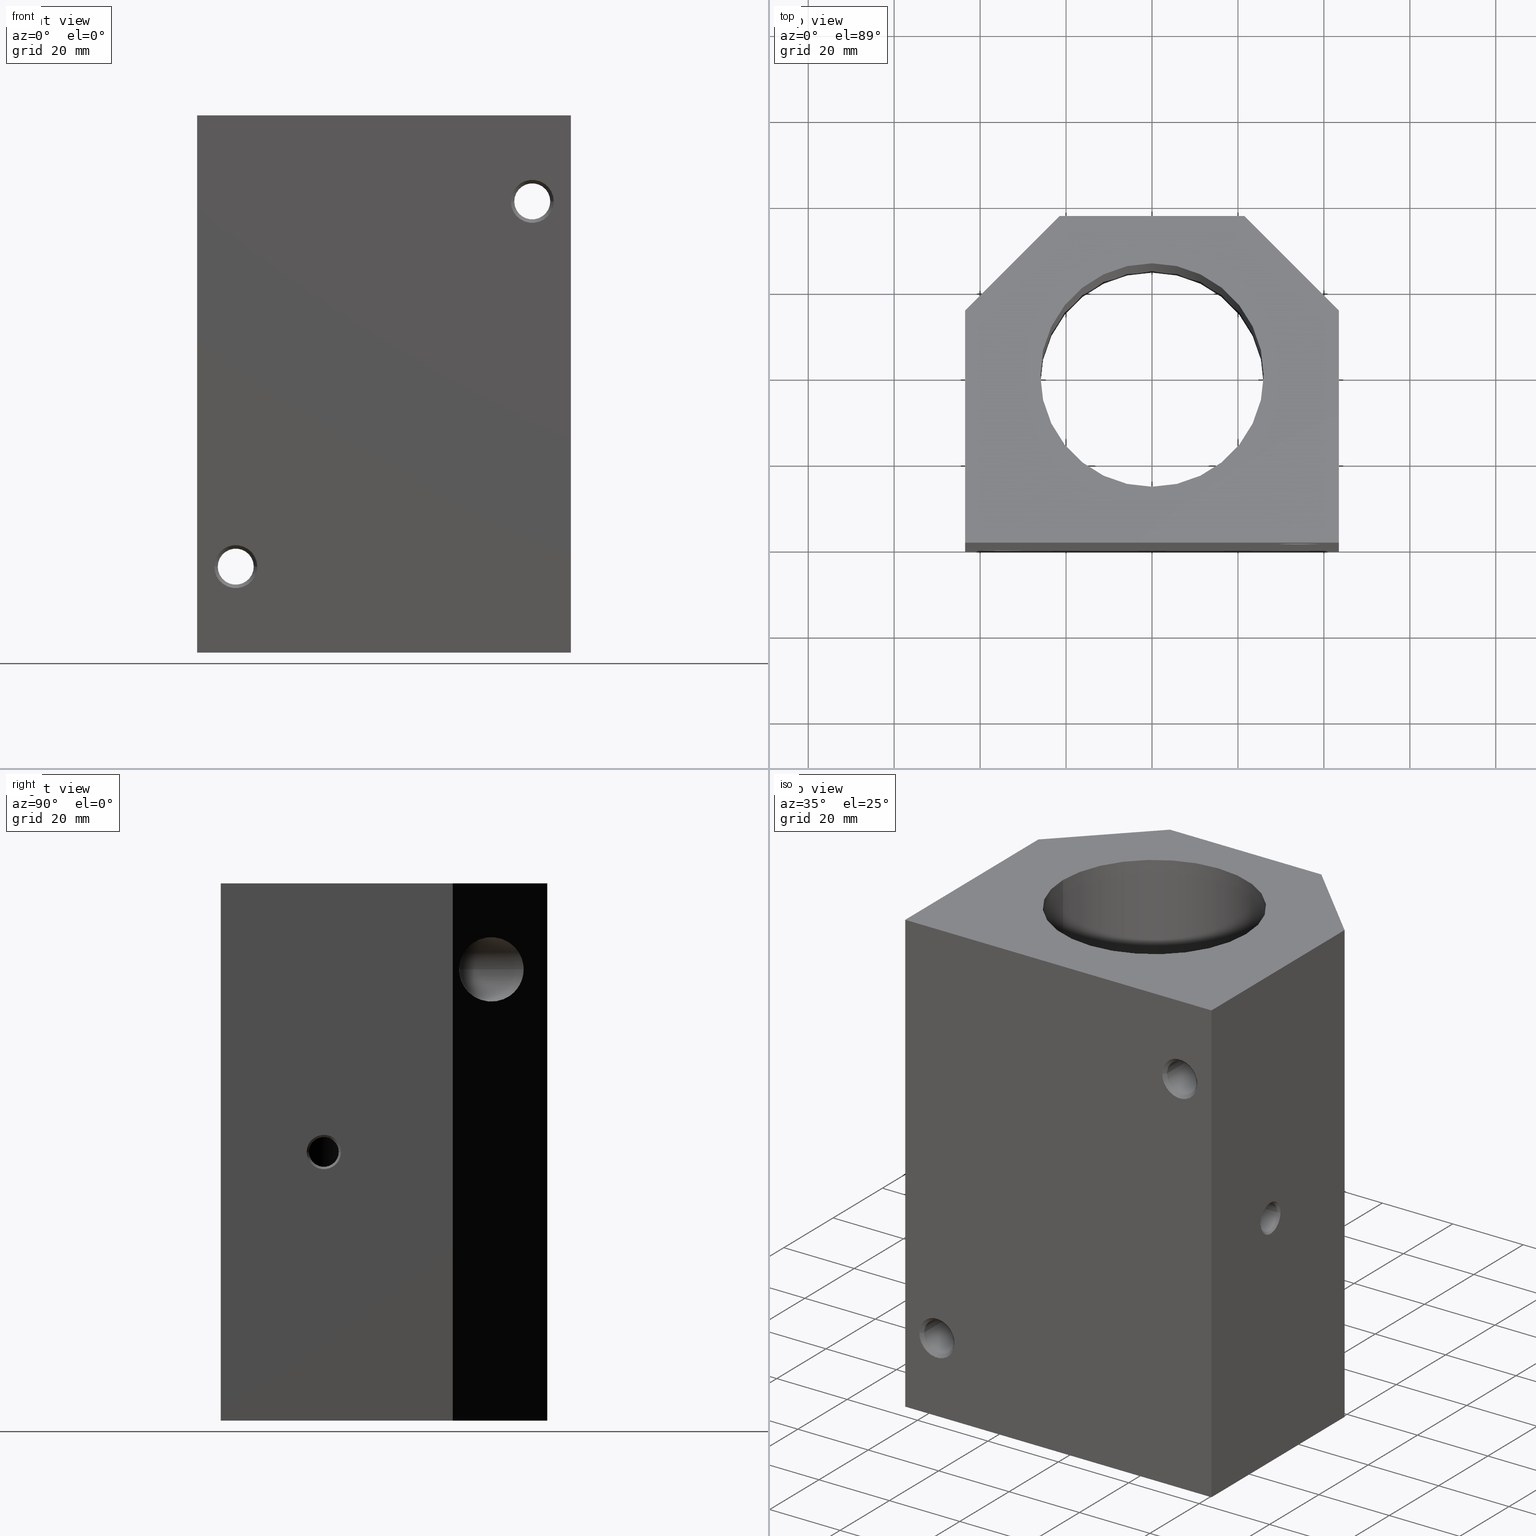
[diagram: canonical four-view strip — front | top / right | iso, engineering-drawing reading convention]
A machine part, canonical four-view strip (front | top / right | iso — engineering-drawing reading convention). The complete STEP part file that produces these views, byte-faithful:
ISO-10303-21;
HEADER;
FILE_DESCRIPTION( ( '' ), '1' );
FILE_NAME( '//expscmdclustefs.cadenas.external/client_exchange/iodir/jobs/output/wkb50721888_no0/STEP/TAGC_40_2_03.stp', '2012-11-02T14:58:59', ( '' ), ( '' ), ' ', ' ', ' ' );
FILE_SCHEMA( ( 'CONFIG_CONTROL_DESIGN' ) );
ENDSEC;
DATA;
#1 = DESIGN_CONTEXT( '', #27, 'design' );
#2 = APPLICATION_PROTOCOL_DEFINITION( 'INTERNATIONAL STANDARD', 'config_control_design', 1994, #27 );
#3 = PRODUCT_CATEGORY_RELATIONSHIP( 'NONE', 'NONE', #28, #29 );
#4 = DATE_AND_TIME( #30, #31 );
#5 = DATE_TIME_ROLE( 'creation_date' );
#6 = DATE_TIME_ROLE( 'classification_date' );
#7 = PERSON_AND_ORGANIZATION_ROLE( 'creator' );
#8 = PERSON_AND_ORGANIZATION_ROLE( 'design_supplier' );
#9 = PERSON_AND_ORGANIZATION_ROLE( 'classification_officer' );
#10 = PERSON_AND_ORGANIZATION_ROLE( 'design_owner' );
#11 = APPROVAL_PERSON_ORGANIZATION( #32, #33, #34 );
#12 = APPROVAL_DATE_TIME( #4, #33 );
#13 = CC_DESIGN_APPROVAL( #33, ( #35, #36, #37 ) );
#14 = CC_DESIGN_DATE_AND_TIME_ASSIGNMENT( #4, #5, ( #37 ) );
#15 = CC_DESIGN_DATE_AND_TIME_ASSIGNMENT( #4, #6, ( #35 ) );
#16 = CC_DESIGN_PERSON_AND_ORGANIZATION_ASSIGNMENT( #32, #10, ( #38 ) );
#17 = CC_DESIGN_PERSON_AND_ORGANIZATION_ASSIGNMENT( #32, #7, ( #37 ) );
#18 = CC_DESIGN_PERSON_AND_ORGANIZATION_ASSIGNMENT( #32, #7, ( #36 ) );
#19 = CC_DESIGN_PERSON_AND_ORGANIZATION_ASSIGNMENT( #32, #8, ( #36 ) );
#20 = CC_DESIGN_SECURITY_CLASSIFICATION( #35, ( #36 ) );
#21 = CC_DESIGN_PERSON_AND_ORGANIZATION_ASSIGNMENT( #32, #9, ( #35 ) );
#22 = SHAPE_DEFINITION_REPRESENTATION( #39, #40 );
#23 =  ( GEOMETRIC_REPRESENTATION_CONTEXT( 3 )GLOBAL_UNCERTAINTY_ASSIGNED_CONTEXT( ( #43 ) )GLOBAL_UNIT_ASSIGNED_CONTEXT( ( #45, #46, #47 ) )REPRESENTATION_CONTEXT( 'NONE', 'WORKSPACE' ) );
#27 = APPLICATION_CONTEXT( 'CONFIGURATION CONTROLLED 3D DESIGNS OF MECHANICAL PARTS AND ASSEMBLIES' );
#28 = PRODUCT_CATEGORY( 'part', 'NONE' );
#29 = PRODUCT_RELATED_PRODUCT_CATEGORY( 'detail', ' ', ( #38 ) );
#30 = CALENDAR_DATE( 2012, 2, 10 );
#31 = LOCAL_TIME( 15, 58, 59.0000000000000, #49 );
#32 = PERSON_AND_ORGANIZATION( #50, #51 );
#33 = APPROVAL( #52, 'SOLID MODEL' );
#34 = APPROVAL_ROLE( 'APPROVED' );
#35 = SECURITY_CLASSIFICATION( '', '', #53 );
#36 = PRODUCT_DEFINITION_FORMATION_WITH_SPECIFIED_SOURCE( ' ', 'NONE', #38, .NOT_KNOWN. );
#37 = PRODUCT_DEFINITION( 'NONE', 'NONE', #36, #1 );
#38 = PRODUCT( '1', '1', 'PART-1-DESC', ( #54 ) );
#39 = PRODUCT_DEFINITION_SHAPE( 'NONE', 'NONE', #37 );
#40 = ADVANCED_BREP_SHAPE_REPRESENTATION( '1', ( #55, #56 ), #23 );
#43 = UNCERTAINTY_MEASURE_WITH_UNIT( LENGTH_MEASURE( 1.00000000000000E-006 ), #45, '', '' );
#45 =  ( CONVERSION_BASED_UNIT( 'MILLIMETRE', #59 )LENGTH_UNIT(  )NAMED_UNIT( #62 ) );
#46 =  ( NAMED_UNIT( #64 )PLANE_ANGLE_UNIT(  )SI_UNIT( $, .RADIAN. ) );
#47 =  ( NAMED_UNIT( #64 )SOLID_ANGLE_UNIT(  )SI_UNIT( $, .STERADIAN. ) );
#49 = COORDINATED_UNIVERSAL_TIME_OFFSET( 1, 0, .AHEAD. );
#50 = PERSON( '', 'UNSPECIFIED', $, $, $, $ );
#51 = ORGANIZATION( 'UNSPECIFIED', 'UNSPECIFIED', 'UNSPECIFIED' );
#52 = APPROVAL_STATUS( 'approved' );
#53 = SECURITY_CLASSIFICATION_LEVEL( 'unclassified' );
#54 = MECHANICAL_CONTEXT( '', #27, 'mechanical' );
#55 = MANIFOLD_SOLID_BREP( '1', #70 );
#56 = AXIS2_PLACEMENT_3D( '', #71, #72, #73 );
#59 = LENGTH_MEASURE_WITH_UNIT( LENGTH_MEASURE( 1.00000000000000 ), #74 );
#62 = DIMENSIONAL_EXPONENTS( 1.00000000000000, 0.000000000000000, 0.000000000000000, 0.000000000000000, 0.000000000000000, 0.000000000000000, 0.000000000000000 );
#64 = DIMENSIONAL_EXPONENTS( 0.000000000000000, 0.000000000000000, 0.000000000000000, 0.000000000000000, 0.000000000000000, 0.000000000000000, 0.000000000000000 );
#70 = CLOSED_SHELL( '', ( #75, #76, #77, #78, #79, #80, #81, #82, #83, #84, #85, #86, #87, #88, #89, #90, #91, #92, #93, #94, #95, #96, #97, #98, #99, #100, #101, #102, #103, #104, #105, #106, #107, #108 ) );
#71 = CARTESIAN_POINT( '', ( 0.000000000000000, 0.000000000000000, 0.000000000000000 ) );
#72 = DIRECTION( '', ( 0.000000000000000, 0.000000000000000, 1.00000000000000 ) );
#73 = DIRECTION( '', ( 1.00000000000000, 0.000000000000000, 0.000000000000000 ) );
#74 =  ( NAMED_UNIT( #62 )LENGTH_UNIT(  )SI_UNIT( .MILLI., .METRE. ) );
#75 = ADVANCED_FACE( '', ( #110, #111 ), #112, .F. );
#76 = ADVANCED_FACE( '', ( #113 ), #114, .F. );
#77 = ADVANCED_FACE( '', ( #115 ), #116, .F. );
#78 = ADVANCED_FACE( '', ( #117 ), #118, .F. );
#79 = ADVANCED_FACE( '', ( #119 ), #120, .F. );
#80 = ADVANCED_FACE( '', ( #121 ), #122, .F. );
#81 = ADVANCED_FACE( '', ( #123 ), #124, .F. );
#82 = ADVANCED_FACE( '', ( #125 ), #126, .F. );
#83 = ADVANCED_FACE( '', ( #127 ), #128, .F. );
#84 = ADVANCED_FACE( '', ( #129 ), #130, .F. );
#85 = ADVANCED_FACE( '', ( #131 ), #132, .F. );
#86 = ADVANCED_FACE( '', ( #133 ), #134, .F. );
#87 = ADVANCED_FACE( '', ( #135 ), #136, .F. );
#88 = ADVANCED_FACE( '', ( #137 ), #138, .F. );
#89 = ADVANCED_FACE( '', ( #139 ), #140, .F. );
#90 = ADVANCED_FACE( '', ( #141, #142 ), #143, .F. );
#91 = ADVANCED_FACE( '', ( #144 ), #145, .F. );
#92 = ADVANCED_FACE( '', ( #146, #147 ), #148, .F. );
#93 = ADVANCED_FACE( '', ( #149 ), #150, .F. );
#94 = ADVANCED_FACE( '', ( #151 ), #152, .F. );
#95 = ADVANCED_FACE( '', ( #153 ), #154, .F. );
#96 = ADVANCED_FACE( '', ( #155, #156 ), #157, .F. );
#97 = ADVANCED_FACE( '', ( #158 ), #159, .F. );
#98 = ADVANCED_FACE( '', ( #160, #161 ), #162, .F. );
#99 = ADVANCED_FACE( '', ( #163 ), #164, .F. );
#100 = ADVANCED_FACE( '', ( #165 ), #166, .F. );
#101 = ADVANCED_FACE( '', ( #167 ), #168, .T. );
#102 = ADVANCED_FACE( '', ( #169, #170 ), #171, .T. );
#103 = ADVANCED_FACE( '', ( #172 ), #173, .T. );
#104 = ADVANCED_FACE( '', ( #174, #175 ), #176, .T. );
#105 = ADVANCED_FACE( '', ( #177, #178 ), #179, .T. );
#106 = ADVANCED_FACE( '', ( #180, #181, #182 ), #183, .T. );
#107 = ADVANCED_FACE( '', ( #184, #185 ), #186, .T. );
#108 = ADVANCED_FACE( '', ( #187, #188 ), #189, .F. );
#110 = FACE_OUTER_BOUND( '', #190, .T. );
#111 = FACE_BOUND( '', #191, .T. );
#112 = CYLINDRICAL_SURFACE( '', #192, 26.0000000000000 );
#113 = FACE_OUTER_BOUND( '', #193, .T. );
#114 = CYLINDRICAL_SURFACE( '', #194, 7.50000000000000 );
#115 = FACE_OUTER_BOUND( '', #195, .T. );
#116 = CYLINDRICAL_SURFACE( '', #196, 4.20000000000000 );
#117 = FACE_OUTER_BOUND( '', #197, .T. );
#118 = CYLINDRICAL_SURFACE( '', #198, 4.18800000000000 );
#119 = FACE_OUTER_BOUND( '', #199, .T. );
#120 = CONICAL_SURFACE( '', #200, 4.59400000000000, 0.785398163397448 );
#121 = FACE_OUTER_BOUND( '', #201, .T. );
#122 = CYLINDRICAL_SURFACE( '', #202, 7.50000000000000 );
#123 = FACE_OUTER_BOUND( '', #203, .T. );
#124 = CYLINDRICAL_SURFACE( '', #204, 4.20000000000000 );
#125 = FACE_OUTER_BOUND( '', #205, .T. );
#126 = CYLINDRICAL_SURFACE( '', #206, 4.18800000000000 );
#127 = FACE_OUTER_BOUND( '', #207, .T. );
#128 = CONICAL_SURFACE( '', #208, 4.59399999999999, 0.785398163397448 );
#129 = FACE_OUTER_BOUND( '', #209, .T. );
#130 = CYLINDRICAL_SURFACE( '', #210, 3.45873000000000 );
#131 = FACE_OUTER_BOUND( '', #211, .T. );
#132 = CONICAL_SURFACE( '', #212, 3.72936500000000, 0.785398163397452 );
#133 = FACE_OUTER_BOUND( '', #213, .T. );
#134 = CONICAL_SURFACE( '', #214, 3.72936500000000, 0.785398163397452 );
#135 = FACE_OUTER_BOUND( '', #215, .T. );
#136 = CYLINDRICAL_SURFACE( '', #216, 3.45873000000000 );
#137 = FACE_OUTER_BOUND( '', #217, .T. );
#138 = CONICAL_SURFACE( '', #218, 4.59399999999999, 0.785398163397448 );
#139 = FACE_OUTER_BOUND( '', #219, .T. );
#140 = CYLINDRICAL_SURFACE( '', #220, 4.18800000000000 );
#141 = FACE_OUTER_BOUND( '', #221, .T. );
#142 = FACE_BOUND( '', #222, .T. );
#143 = PLANE( '', #223 );
#144 = FACE_OUTER_BOUND( '', #224, .T. );
#145 = CYLINDRICAL_SURFACE( '', #225, 4.20000000000000 );
#146 = FACE_OUTER_BOUND( '', #226, .T. );
#147 = FACE_BOUND( '', #227, .T. );
#148 = PLANE( '', #228 );
#149 = FACE_OUTER_BOUND( '', #229, .T. );
#150 = CYLINDRICAL_SURFACE( '', #230, 7.50000000000000 );
#151 = FACE_OUTER_BOUND( '', #231, .T. );
#152 = CONICAL_SURFACE( '', #232, 4.59400000000000, 0.785398163397448 );
#153 = FACE_OUTER_BOUND( '', #233, .T. );
#154 = CYLINDRICAL_SURFACE( '', #234, 4.18800000000000 );
#155 = FACE_OUTER_BOUND( '', #235, .T. );
#156 = FACE_BOUND( '', #236, .T. );
#157 = PLANE( '', #237 );
#158 = FACE_OUTER_BOUND( '', #238, .T. );
#159 = CYLINDRICAL_SURFACE( '', #239, 4.20000000000000 );
#160 = FACE_OUTER_BOUND( '', #240, .T. );
#161 = FACE_BOUND( '', #241, .T. );
#162 = PLANE( '', #242 );
#163 = FACE_OUTER_BOUND( '', #243, .T. );
#164 = CYLINDRICAL_SURFACE( '', #244, 7.50000000000000 );
#165 = FACE_OUTER_BOUND( '', #245, .T. );
#166 = CYLINDRICAL_SURFACE( '', #246, 26.0000000000000 );
#167 = FACE_OUTER_BOUND( '', #247, .T. );
#168 = PLANE( '', #248 );
#169 = FACE_BOUND( '', #249, .T. );
#170 = FACE_OUTER_BOUND( '', #250, .T. );
#171 = PLANE( '', #251 );
#172 = FACE_OUTER_BOUND( '', #252, .T. );
#173 = PLANE( '', #253 );
#174 = FACE_BOUND( '', #254, .T. );
#175 = FACE_OUTER_BOUND( '', #255, .T. );
#176 = PLANE( '', #256 );
#177 = FACE_BOUND( '', #257, .T. );
#178 = FACE_OUTER_BOUND( '', #258, .T. );
#179 = PLANE( '', #259 );
#180 = FACE_BOUND( '', #260, .T. );
#181 = FACE_BOUND( '', #261, .T. );
#182 = FACE_OUTER_BOUND( '', #262, .T. );
#183 = PLANE( '', #263 );
#184 = FACE_OUTER_BOUND( '', #264, .T. );
#185 = FACE_BOUND( '', #265, .T. );
#186 = PLANE( '', #266 );
#187 = FACE_OUTER_BOUND( '', #267, .T. );
#188 = FACE_BOUND( '', #268, .T. );
#189 = PLANE( '', #269 );
#190 = EDGE_LOOP( '', ( #270, #271, #272, #273 ) );
#191 = EDGE_LOOP( '', ( #274, #275 ) );
#192 = AXIS2_PLACEMENT_3D( '', #276, #277, #278 );
#193 = EDGE_LOOP( '', ( #279, #280, #281, #282 ) );
#194 = AXIS2_PLACEMENT_3D( '', #283, #284, #285 );
#195 = EDGE_LOOP( '', ( #286, #287, #288, #289 ) );
#196 = AXIS2_PLACEMENT_3D( '', #290, #291, #292 );
#197 = EDGE_LOOP( '', ( #293, #294, #295, #296 ) );
#198 = AXIS2_PLACEMENT_3D( '', #297, #298, #299 );
#199 = EDGE_LOOP( '', ( #300, #301, #302, #303 ) );
#200 = AXIS2_PLACEMENT_3D( '', #304, #305, #306 );
#201 = EDGE_LOOP( '', ( #307, #308, #309, #310 ) );
#202 = AXIS2_PLACEMENT_3D( '', #311, #312, #313 );
#203 = EDGE_LOOP( '', ( #314, #315, #316, #317 ) );
#204 = AXIS2_PLACEMENT_3D( '', #318, #319, #320 );
#205 = EDGE_LOOP( '', ( #321, #322, #323, #324 ) );
#206 = AXIS2_PLACEMENT_3D( '', #325, #326, #327 );
#207 = EDGE_LOOP( '', ( #328, #329, #330, #331 ) );
#208 = AXIS2_PLACEMENT_3D( '', #332, #333, #334 );
#209 = EDGE_LOOP( '', ( #335, #336, #337, #338 ) );
#210 = AXIS2_PLACEMENT_3D( '', #339, #340, #341 );
#211 = EDGE_LOOP( '', ( #342, #343, #344, #345 ) );
#212 = AXIS2_PLACEMENT_3D( '', #346, #347, #348 );
#213 = EDGE_LOOP( '', ( #349, #350, #351, #352 ) );
#214 = AXIS2_PLACEMENT_3D( '', #353, #354, #355 );
#215 = EDGE_LOOP( '', ( #356, #357, #358, #359 ) );
#216 = AXIS2_PLACEMENT_3D( '', #360, #361, #362 );
#217 = EDGE_LOOP( '', ( #363, #364, #365, #366 ) );
#218 = AXIS2_PLACEMENT_3D( '', #367, #368, #369 );
#219 = EDGE_LOOP( '', ( #370, #371, #372, #373 ) );
#220 = AXIS2_PLACEMENT_3D( '', #374, #375, #376 );
#221 = EDGE_LOOP( '', ( #377, #378 ) );
#222 = EDGE_LOOP( '', ( #379, #380 ) );
#223 = AXIS2_PLACEMENT_3D( '', #381, #382, #383 );
#224 = EDGE_LOOP( '', ( #384, #385, #386, #387 ) );
#225 = AXIS2_PLACEMENT_3D( '', #388, #389, #390 );
#226 = EDGE_LOOP( '', ( #391, #392 ) );
#227 = EDGE_LOOP( '', ( #393, #394 ) );
#228 = AXIS2_PLACEMENT_3D( '', #395, #396, #397 );
#229 = EDGE_LOOP( '', ( #398, #399, #400, #401 ) );
#230 = AXIS2_PLACEMENT_3D( '', #402, #403, #404 );
#231 = EDGE_LOOP( '', ( #405, #406, #407, #408 ) );
#232 = AXIS2_PLACEMENT_3D( '', #409, #410, #411 );
#233 = EDGE_LOOP( '', ( #412, #413, #414, #415 ) );
#234 = AXIS2_PLACEMENT_3D( '', #416, #417, #418 );
#235 = EDGE_LOOP( '', ( #419, #420 ) );
#236 = EDGE_LOOP( '', ( #421, #422 ) );
#237 = AXIS2_PLACEMENT_3D( '', #423, #424, #425 );
#238 = EDGE_LOOP( '', ( #426, #427, #428, #429 ) );
#239 = AXIS2_PLACEMENT_3D( '', #430, #431, #432 );
#240 = EDGE_LOOP( '', ( #433, #434 ) );
#241 = EDGE_LOOP( '', ( #435, #436 ) );
#242 = AXIS2_PLACEMENT_3D( '', #437, #438, #439 );
#243 = EDGE_LOOP( '', ( #440, #441, #442, #443 ) );
#244 = AXIS2_PLACEMENT_3D( '', #444, #445, #446 );
#245 = EDGE_LOOP( '', ( #447, #448, #449, #450 ) );
#246 = AXIS2_PLACEMENT_3D( '', #451, #452, #453 );
#247 = EDGE_LOOP( '', ( #454, #455, #456, #457 ) );
#248 = AXIS2_PLACEMENT_3D( '', #458, #459, #460 );
#249 = EDGE_LOOP( '', ( #461, #462 ) );
#250 = EDGE_LOOP( '', ( #463, #464, #465, #466 ) );
#251 = AXIS2_PLACEMENT_3D( '', #467, #468, #469 );
#252 = EDGE_LOOP( '', ( #470, #471, #472, #473 ) );
#253 = AXIS2_PLACEMENT_3D( '', #474, #475, #476 );
#254 = EDGE_LOOP( '', ( #477, #478 ) );
#255 = EDGE_LOOP( '', ( #479, #480, #481, #482 ) );
#256 = AXIS2_PLACEMENT_3D( '', #483, #484, #485 );
#257 = EDGE_LOOP( '', ( #486, #487 ) );
#258 = EDGE_LOOP( '', ( #488, #489, #490, #491 ) );
#259 = AXIS2_PLACEMENT_3D( '', #492, #493, #494 );
#260 = EDGE_LOOP( '', ( #495, #496 ) );
#261 = EDGE_LOOP( '', ( #497, #498 ) );
#262 = EDGE_LOOP( '', ( #499, #500, #501, #502 ) );
#263 = AXIS2_PLACEMENT_3D( '', #503, #504, #505 );
#264 = EDGE_LOOP( '', ( #506, #507, #508, #509, #510, #511 ) );
#265 = EDGE_LOOP( '', ( #512, #513 ) );
#266 = AXIS2_PLACEMENT_3D( '', #514, #515, #516 );
#267 = EDGE_LOOP( '', ( #517, #518, #519, #520, #521, #522 ) );
#268 = EDGE_LOOP( '', ( #523, #524 ) );
#269 = AXIS2_PLACEMENT_3D( '', #525, #526, #527 );
#270 = ORIENTED_EDGE( '', *, *, #528, .F. );
#271 = ORIENTED_EDGE( '', *, *, #529, .F. );
#272 = ORIENTED_EDGE( '', *, *, #530, .F. );
#273 = ORIENTED_EDGE( '', *, *, #531, .T. );
#274 = ORIENTED_EDGE( '', *, *, #532, .T. );
#275 = ORIENTED_EDGE( '', *, *, #533, .T. );
#276 = CARTESIAN_POINT( '', ( 0.000000000000000, 39.0000000000000, 0.000000000000000 ) );
#277 = DIRECTION( '', ( -0.000000000000000, -0.000000000000000, -1.00000000000000 ) );
#278 = DIRECTION( '', ( 1.00000000000000, 0.000000000000000, 0.000000000000000 ) );
#279 = ORIENTED_EDGE( '', *, *, #534, .F. );
#280 = ORIENTED_EDGE( '', *, *, #535, .F. );
#281 = ORIENTED_EDGE( '', *, *, #536, .F. );
#282 = ORIENTED_EDGE( '', *, *, #537, .F. );
#283 = CARTESIAN_POINT( '', ( 34.5000000000000, 57.0000000000000, 105.000000000000 ) );
#284 = DIRECTION( '', ( 0.000000000000000, -1.00000000000000, -0.000000000000000 ) );
#285 = DIRECTION( '', ( 1.00000000000000, 0.000000000000000, 0.000000000000000 ) );
#286 = ORIENTED_EDGE( '', *, *, #538, .F. );
#287 = ORIENTED_EDGE( '', *, *, #539, .T. );
#288 = ORIENTED_EDGE( '', *, *, #540, .F. );
#289 = ORIENTED_EDGE( '', *, *, #541, .F. );
#290 = CARTESIAN_POINT( '', ( 34.5000000000000, 30.0000000000000, 105.000000000000 ) );
#291 = DIRECTION( '', ( 0.000000000000000, -1.00000000000000, -0.000000000000000 ) );
#292 = DIRECTION( '', ( 1.00000000000000, 0.000000000000000, 0.000000000000000 ) );
#293 = ORIENTED_EDGE( '', *, *, #542, .F. );
#294 = ORIENTED_EDGE( '', *, *, #543, .T. );
#295 = ORIENTED_EDGE( '', *, *, #544, .F. );
#296 = ORIENTED_EDGE( '', *, *, #545, .F. );
#297 = CARTESIAN_POINT( '', ( 34.5000000000000, 11.4060000000000, 105.000000000000 ) );
#298 = DIRECTION( '', ( 0.000000000000000, -1.00000000000000, -0.000000000000000 ) );
#299 = DIRECTION( '', ( 1.00000000000000, 0.000000000000000, 0.000000000000000 ) );
#300 = ORIENTED_EDGE( '', *, *, #546, .F. );
#301 = ORIENTED_EDGE( '', *, *, #545, .T. );
#302 = ORIENTED_EDGE( '', *, *, #547, .F. );
#303 = ORIENTED_EDGE( '', *, *, #548, .F. );
#304 = CARTESIAN_POINT( '', ( 34.5000000000000, 0.406000000000006, 105.000000000000 ) );
#305 = DIRECTION( '', ( 0.000000000000000, -1.00000000000000, -0.000000000000000 ) );
#306 = DIRECTION( '', ( 1.00000000000000, 0.000000000000000, 0.000000000000000 ) );
#307 = ORIENTED_EDGE( '', *, *, #549, .F. );
#308 = ORIENTED_EDGE( '', *, *, #550, .F. );
#309 = ORIENTED_EDGE( '', *, *, #551, .F. );
#310 = ORIENTED_EDGE( '', *, *, #552, .F. );
#311 = CARTESIAN_POINT( '', ( -34.5000000000000, 57.0000000000000, 20.0000000000000 ) );
#312 = DIRECTION( '', ( 0.000000000000000, -1.00000000000000, -0.000000000000000 ) );
#313 = DIRECTION( '', ( 1.00000000000000, 0.000000000000000, 0.000000000000000 ) );
#314 = ORIENTED_EDGE( '', *, *, #553, .F. );
#315 = ORIENTED_EDGE( '', *, *, #554, .T. );
#316 = ORIENTED_EDGE( '', *, *, #555, .F. );
#317 = ORIENTED_EDGE( '', *, *, #556, .F. );
#318 = CARTESIAN_POINT( '', ( -34.5000000000000, 30.0000000000000, 20.0000000000000 ) );
#319 = DIRECTION( '', ( 0.000000000000000, -1.00000000000000, -0.000000000000000 ) );
#320 = DIRECTION( '', ( 1.00000000000000, 0.000000000000000, 0.000000000000000 ) );
#321 = ORIENTED_EDGE( '', *, *, #557, .F. );
#322 = ORIENTED_EDGE( '', *, *, #558, .T. );
#323 = ORIENTED_EDGE( '', *, *, #559, .F. );
#324 = ORIENTED_EDGE( '', *, *, #560, .F. );
#325 = CARTESIAN_POINT( '', ( -34.5000000000000, 11.4060000000000, 20.0000000000000 ) );
#326 = DIRECTION( '', ( 0.000000000000000, -1.00000000000000, -0.000000000000000 ) );
#327 = DIRECTION( '', ( 1.00000000000000, 0.000000000000000, 0.000000000000000 ) );
#328 = ORIENTED_EDGE( '', *, *, #561, .F. );
#329 = ORIENTED_EDGE( '', *, *, #560, .T. );
#330 = ORIENTED_EDGE( '', *, *, #562, .F. );
#331 = ORIENTED_EDGE( '', *, *, #563, .F. );
#332 = CARTESIAN_POINT( '', ( -34.5000000000000, 0.406000000000006, 20.0000000000000 ) );
#333 = DIRECTION( '', ( 0.000000000000000, -1.00000000000000, -0.000000000000000 ) );
#334 = DIRECTION( '', ( 1.00000000000000, 0.000000000000000, 0.000000000000000 ) );
#335 = ORIENTED_EDGE( '', *, *, #564, .F. );
#336 = ORIENTED_EDGE( '', *, *, #532, .F. );
#337 = ORIENTED_EDGE( '', *, *, #565, .F. );
#338 = ORIENTED_EDGE( '', *, *, #566, .F. );
#339 = CARTESIAN_POINT( '', ( 21.4793650000000, 24.0000000000000, 62.5000000000000 ) );
#340 = DIRECTION( '', ( 1.00000000000000, -0.000000000000000, -0.000000000000000 ) );
#341 = DIRECTION( '', ( 0.000000000000000, 1.00000000000000, 0.000000000000000 ) );
#342 = ORIENTED_EDGE( '', *, *, #567, .F. );
#343 = ORIENTED_EDGE( '', *, *, #566, .T. );
#344 = ORIENTED_EDGE( '', *, *, #568, .F. );
#345 = ORIENTED_EDGE( '', *, *, #569, .F. );
#346 = CARTESIAN_POINT( '', ( 43.2293650000000, 24.0000000000000, 62.5000000000000 ) );
#347 = DIRECTION( '', ( 1.00000000000000, -0.000000000000000, -0.000000000000000 ) );
#348 = DIRECTION( '', ( 0.000000000000000, 1.00000000000000, 0.000000000000000 ) );
#349 = ORIENTED_EDGE( '', *, *, #567, .T. );
#350 = ORIENTED_EDGE( '', *, *, #570, .F. );
#351 = ORIENTED_EDGE( '', *, *, #568, .T. );
#352 = ORIENTED_EDGE( '', *, *, #571, .T. );
#353 = CARTESIAN_POINT( '', ( 43.2293650000000, 24.0000000000000, 62.5000000000000 ) );
#354 = DIRECTION( '', ( 1.00000000000000, -0.000000000000000, -0.000000000000000 ) );
#355 = DIRECTION( '', ( 0.000000000000000, 1.00000000000000, 0.000000000000000 ) );
#356 = ORIENTED_EDGE( '', *, *, #564, .T. );
#357 = ORIENTED_EDGE( '', *, *, #571, .F. );
#358 = ORIENTED_EDGE( '', *, *, #565, .T. );
#359 = ORIENTED_EDGE( '', *, *, #533, .F. );
#360 = CARTESIAN_POINT( '', ( 21.4793650000000, 24.0000000000000, 62.5000000000000 ) );
#361 = DIRECTION( '', ( 1.00000000000000, -0.000000000000000, -0.000000000000000 ) );
#362 = DIRECTION( '', ( 0.000000000000000, 1.00000000000000, 0.000000000000000 ) );
#363 = ORIENTED_EDGE( '', *, *, #561, .T. );
#364 = ORIENTED_EDGE( '', *, *, #572, .F. );
#365 = ORIENTED_EDGE( '', *, *, #562, .T. );
#366 = ORIENTED_EDGE( '', *, *, #573, .T. );
#367 = CARTESIAN_POINT( '', ( -34.5000000000000, 0.406000000000006, 20.0000000000000 ) );
#368 = DIRECTION( '', ( 0.000000000000000, -1.00000000000000, -0.000000000000000 ) );
#369 = DIRECTION( '', ( 1.00000000000000, 0.000000000000000, 0.000000000000000 ) );
#370 = ORIENTED_EDGE( '', *, *, #557, .T. );
#371 = ORIENTED_EDGE( '', *, *, #573, .F. );
#372 = ORIENTED_EDGE( '', *, *, #559, .T. );
#373 = ORIENTED_EDGE( '', *, *, #574, .T. );
#374 = CARTESIAN_POINT( '', ( -34.5000000000000, 11.4060000000000, 20.0000000000000 ) );
#375 = DIRECTION( '', ( 0.000000000000000, -1.00000000000000, -0.000000000000000 ) );
#376 = DIRECTION( '', ( 1.00000000000000, 0.000000000000000, 0.000000000000000 ) );
#377 = ORIENTED_EDGE( '', *, *, #556, .T. );
#378 = ORIENTED_EDGE( '', *, *, #575, .T. );
#379 = ORIENTED_EDGE( '', *, *, #558, .F. );
#380 = ORIENTED_EDGE( '', *, *, #574, .F. );
#381 = CARTESIAN_POINT( '', ( -30.3060000000000, 22.0000000000000, 20.0000000000000 ) );
#382 = DIRECTION( '', ( -0.000000000000000, -1.00000000000000, 0.000000000000000 ) );
#383 = DIRECTION( '', ( -1.00000000000000, 0.000000000000000, 2.44921270764475E-016 ) );
#384 = ORIENTED_EDGE( '', *, *, #553, .T. );
#385 = ORIENTED_EDGE( '', *, *, #575, .F. );
#386 = ORIENTED_EDGE( '', *, *, #555, .T. );
#387 = ORIENTED_EDGE( '', *, *, #576, .T. );
#388 = CARTESIAN_POINT( '', ( -34.5000000000000, 30.0000000000000, 20.0000000000000 ) );
#389 = DIRECTION( '', ( 0.000000000000000, -1.00000000000000, -0.000000000000000 ) );
#390 = DIRECTION( '', ( 1.00000000000000, 0.000000000000000, 0.000000000000000 ) );
#391 = ORIENTED_EDGE( '', *, *, #552, .T. );
#392 = ORIENTED_EDGE( '', *, *, #577, .T. );
#393 = ORIENTED_EDGE( '', *, *, #554, .F. );
#394 = ORIENTED_EDGE( '', *, *, #576, .F. );
#395 = CARTESIAN_POINT( '', ( -28.6500000000000, 38.0000000000000, 20.0000000000000 ) );
#396 = DIRECTION( '', ( -0.000000000000000, -1.00000000000000, 0.000000000000000 ) );
#397 = DIRECTION( '', ( -1.00000000000000, 0.000000000000000, 2.44921270764475E-016 ) );
#398 = ORIENTED_EDGE( '', *, *, #549, .T. );
#399 = ORIENTED_EDGE( '', *, *, #577, .F. );
#400 = ORIENTED_EDGE( '', *, *, #551, .T. );
#401 = ORIENTED_EDGE( '', *, *, #578, .F. );
#402 = CARTESIAN_POINT( '', ( -34.5000000000000, 57.0000000000000, 20.0000000000000 ) );
#403 = DIRECTION( '', ( 0.000000000000000, -1.00000000000000, -0.000000000000000 ) );
#404 = DIRECTION( '', ( 1.00000000000000, 0.000000000000000, 0.000000000000000 ) );
#405 = ORIENTED_EDGE( '', *, *, #546, .T. );
#406 = ORIENTED_EDGE( '', *, *, #579, .F. );
#407 = ORIENTED_EDGE( '', *, *, #547, .T. );
#408 = ORIENTED_EDGE( '', *, *, #580, .T. );
#409 = CARTESIAN_POINT( '', ( 34.5000000000000, 0.406000000000006, 105.000000000000 ) );
#410 = DIRECTION( '', ( 0.000000000000000, -1.00000000000000, -0.000000000000000 ) );
#411 = DIRECTION( '', ( 1.00000000000000, 0.000000000000000, 0.000000000000000 ) );
#412 = ORIENTED_EDGE( '', *, *, #542, .T. );
#413 = ORIENTED_EDGE( '', *, *, #580, .F. );
#414 = ORIENTED_EDGE( '', *, *, #544, .T. );
#415 = ORIENTED_EDGE( '', *, *, #581, .T. );
#416 = CARTESIAN_POINT( '', ( 34.5000000000000, 11.4060000000000, 105.000000000000 ) );
#417 = DIRECTION( '', ( 0.000000000000000, -1.00000000000000, -0.000000000000000 ) );
#418 = DIRECTION( '', ( 1.00000000000000, 0.000000000000000, 0.000000000000000 ) );
#419 = ORIENTED_EDGE( '', *, *, #541, .T. );
#420 = ORIENTED_EDGE( '', *, *, #582, .T. );
#421 = ORIENTED_EDGE( '', *, *, #543, .F. );
#422 = ORIENTED_EDGE( '', *, *, #581, .F. );
#423 = CARTESIAN_POINT( '', ( 38.6940000000000, 22.0000000000000, 105.000000000000 ) );
#424 = DIRECTION( '', ( -0.000000000000000, -1.00000000000000, 0.000000000000000 ) );
#425 = DIRECTION( '', ( -1.00000000000000, 0.000000000000000, 2.44921270764475E-016 ) );
#426 = ORIENTED_EDGE( '', *, *, #538, .T. );
#427 = ORIENTED_EDGE( '', *, *, #582, .F. );
#428 = ORIENTED_EDGE( '', *, *, #540, .T. );
#429 = ORIENTED_EDGE( '', *, *, #583, .T. );
#430 = CARTESIAN_POINT( '', ( 34.5000000000000, 30.0000000000000, 105.000000000000 ) );
#431 = DIRECTION( '', ( 0.000000000000000, -1.00000000000000, -0.000000000000000 ) );
#432 = DIRECTION( '', ( 1.00000000000000, 0.000000000000000, 0.000000000000000 ) );
#433 = ORIENTED_EDGE( '', *, *, #537, .T. );
#434 = ORIENTED_EDGE( '', *, *, #584, .T. );
#435 = ORIENTED_EDGE( '', *, *, #539, .F. );
#436 = ORIENTED_EDGE( '', *, *, #583, .F. );
#437 = CARTESIAN_POINT( '', ( 40.3500000000000, 38.0000000000000, 105.000000000000 ) );
#438 = DIRECTION( '', ( -0.000000000000000, -1.00000000000000, 0.000000000000000 ) );
#439 = DIRECTION( '', ( -1.00000000000000, 0.000000000000000, 2.44921270764475E-016 ) );
#440 = ORIENTED_EDGE( '', *, *, #534, .T. );
#441 = ORIENTED_EDGE( '', *, *, #584, .F. );
#442 = ORIENTED_EDGE( '', *, *, #536, .T. );
#443 = ORIENTED_EDGE( '', *, *, #585, .F. );
#444 = CARTESIAN_POINT( '', ( 34.5000000000000, 57.0000000000000, 105.000000000000 ) );
#445 = DIRECTION( '', ( 0.000000000000000, -1.00000000000000, -0.000000000000000 ) );
#446 = DIRECTION( '', ( 1.00000000000000, 0.000000000000000, 0.000000000000000 ) );
#447 = ORIENTED_EDGE( '', *, *, #528, .T. );
#448 = ORIENTED_EDGE( '', *, *, #586, .T. );
#449 = ORIENTED_EDGE( '', *, *, #530, .T. );
#450 = ORIENTED_EDGE( '', *, *, #587, .F. );
#451 = CARTESIAN_POINT( '', ( 0.000000000000000, 39.0000000000000, 0.000000000000000 ) );
#452 = DIRECTION( '', ( -0.000000000000000, -0.000000000000000, -1.00000000000000 ) );
#453 = DIRECTION( '', ( 1.00000000000000, 0.000000000000000, 0.000000000000000 ) );
#454 = ORIENTED_EDGE( '', *, *, #588, .T. );
#455 = ORIENTED_EDGE( '', *, *, #589, .F. );
#456 = ORIENTED_EDGE( '', *, *, #590, .T. );
#457 = ORIENTED_EDGE( '', *, *, #591, .T. );
#458 = CARTESIAN_POINT( '', ( -43.5000000000000, 0.000000000000000, 0.000000000000000 ) );
#459 = DIRECTION( '', ( -1.00000000000000, 0.000000000000000, 0.000000000000000 ) );
#460 = DIRECTION( '', ( 0.000000000000000, -1.00000000000000, 0.000000000000000 ) );
#461 = ORIENTED_EDGE( '', *, *, #550, .T. );
#462 = ORIENTED_EDGE( '', *, *, #578, .T. );
#463 = ORIENTED_EDGE( '', *, *, #592, .T. );
#464 = ORIENTED_EDGE( '', *, *, #593, .F. );
#465 = ORIENTED_EDGE( '', *, *, #594, .T. );
#466 = ORIENTED_EDGE( '', *, *, #589, .T. );
#467 = CARTESIAN_POINT( '', ( -43.5000000000000, 54.0000000000000, 0.000000000000000 ) );
#468 = DIRECTION( '', ( -0.707106781186548, 0.707106781186548, 0.000000000000000 ) );
#469 = DIRECTION( '', ( -0.707106781186548, -0.707106781186548, 0.000000000000000 ) );
#470 = ORIENTED_EDGE( '', *, *, #595, .T. );
#471 = ORIENTED_EDGE( '', *, *, #596, .F. );
#472 = ORIENTED_EDGE( '', *, *, #597, .T. );
#473 = ORIENTED_EDGE( '', *, *, #593, .T. );
#474 = CARTESIAN_POINT( '', ( -21.5000000000000, 76.0000000000000, 0.000000000000000 ) );
#475 = DIRECTION( '', ( 0.000000000000000, 1.00000000000000, -0.000000000000000 ) );
#476 = DIRECTION( '', ( -1.00000000000000, 0.000000000000000, 0.000000000000000 ) );
#477 = ORIENTED_EDGE( '', *, *, #535, .T. );
#478 = ORIENTED_EDGE( '', *, *, #585, .T. );
#479 = ORIENTED_EDGE( '', *, *, #598, .T. );
#480 = ORIENTED_EDGE( '', *, *, #599, .F. );
#481 = ORIENTED_EDGE( '', *, *, #600, .T. );
#482 = ORIENTED_EDGE( '', *, *, #596, .T. );
#483 = CARTESIAN_POINT( '', ( 21.5000000000000, 76.0000000000000, 0.000000000000000 ) );
#484 = DIRECTION( '', ( 0.707106781186548, 0.707106781186548, -0.000000000000000 ) );
#485 = DIRECTION( '', ( -0.707106781186548, 0.707106781186548, 0.000000000000000 ) );
#486 = ORIENTED_EDGE( '', *, *, #569, .T. );
#487 = ORIENTED_EDGE( '', *, *, #570, .T. );
#488 = ORIENTED_EDGE( '', *, *, #601, .T. );
#489 = ORIENTED_EDGE( '', *, *, #602, .F. );
#490 = ORIENTED_EDGE( '', *, *, #603, .T. );
#491 = ORIENTED_EDGE( '', *, *, #599, .T. );
#492 = CARTESIAN_POINT( '', ( 43.5000000000000, 54.0000000000000, 0.000000000000000 ) );
#493 = DIRECTION( '', ( 1.00000000000000, 0.000000000000000, 0.000000000000000 ) );
#494 = DIRECTION( '', ( 0.000000000000000, 1.00000000000000, 0.000000000000000 ) );
#495 = ORIENTED_EDGE( '', *, *, #563, .T. );
#496 = ORIENTED_EDGE( '', *, *, #572, .T. );
#497 = ORIENTED_EDGE( '', *, *, #548, .T. );
#498 = ORIENTED_EDGE( '', *, *, #579, .T. );
#499 = ORIENTED_EDGE( '', *, *, #604, .T. );
#500 = ORIENTED_EDGE( '', *, *, #591, .F. );
#501 = ORIENTED_EDGE( '', *, *, #605, .T. );
#502 = ORIENTED_EDGE( '', *, *, #602, .T. );
#503 = CARTESIAN_POINT( '', ( 43.5000000000000, 0.000000000000000, 0.000000000000000 ) );
#504 = DIRECTION( '', ( 0.000000000000000, -1.00000000000000, 0.000000000000000 ) );
#505 = DIRECTION( '', ( 1.00000000000000, 0.000000000000000, 0.000000000000000 ) );
#506 = ORIENTED_EDGE( '', *, *, #588, .F. );
#507 = ORIENTED_EDGE( '', *, *, #604, .F. );
#508 = ORIENTED_EDGE( '', *, *, #601, .F. );
#509 = ORIENTED_EDGE( '', *, *, #598, .F. );
#510 = ORIENTED_EDGE( '', *, *, #595, .F. );
#511 = ORIENTED_EDGE( '', *, *, #592, .F. );
#512 = ORIENTED_EDGE( '', *, *, #586, .F. );
#513 = ORIENTED_EDGE( '', *, *, #531, .F. );
#514 = CARTESIAN_POINT( '', ( 0.000000000000000, 0.000000000000000, 125.000000000000 ) );
#515 = DIRECTION( '', ( 0.000000000000000, 0.000000000000000, 1.00000000000000 ) );
#516 = DIRECTION( '', ( 1.00000000000000, 0.000000000000000, 0.000000000000000 ) );
#517 = ORIENTED_EDGE( '', *, *, #605, .F. );
#518 = ORIENTED_EDGE( '', *, *, #590, .F. );
#519 = ORIENTED_EDGE( '', *, *, #594, .F. );
#520 = ORIENTED_EDGE( '', *, *, #597, .F. );
#521 = ORIENTED_EDGE( '', *, *, #600, .F. );
#522 = ORIENTED_EDGE( '', *, *, #603, .F. );
#523 = ORIENTED_EDGE( '', *, *, #587, .T. );
#524 = ORIENTED_EDGE( '', *, *, #529, .T. );
#525 = CARTESIAN_POINT( '', ( 0.000000000000000, 0.000000000000000, 0.000000000000000 ) );
#526 = DIRECTION( '', ( 0.000000000000000, 0.000000000000000, 1.00000000000000 ) );
#527 = DIRECTION( '', ( 1.00000000000000, 0.000000000000000, 0.000000000000000 ) );
#528 = EDGE_CURVE( '', #606, #607, #608, .T. );
#529 = EDGE_CURVE( '', #609, #606, #610, .T. );
#530 = EDGE_CURVE( '', #611, #609, #612, .T. );
#531 = EDGE_CURVE( '', #611, #607, #613, .T. );
#532 = EDGE_CURVE( '', #614, #615, #616, .T. );
#533 = EDGE_CURVE( '', #615, #614, #617, .T. );
#534 = EDGE_CURVE( '', #618, #619, #620, .T. );
#535 = EDGE_CURVE( '', #621, #618, #622, .T. );
#536 = EDGE_CURVE( '', #623, #621, #624, .T. );
#537 = EDGE_CURVE( '', #619, #623, #625, .T. );
#538 = EDGE_CURVE( '', #626, #627, #628, .T. );
#539 = EDGE_CURVE( '', #626, #629, #630, .T. );
#540 = EDGE_CURVE( '', #631, #629, #632, .T. );
#541 = EDGE_CURVE( '', #627, #631, #633, .T. );
#542 = EDGE_CURVE( '', #634, #635, #636, .T. );
#543 = EDGE_CURVE( '', #634, #637, #638, .T. );
#544 = EDGE_CURVE( '', #639, #637, #640, .T. );
#545 = EDGE_CURVE( '', #635, #639, #641, .T. );
#546 = EDGE_CURVE( '', #635, #642, #643, .T. );
#547 = EDGE_CURVE( '', #644, #639, #645, .T. );
#548 = EDGE_CURVE( '', #642, #644, #646, .T. );
#549 = EDGE_CURVE( '', #647, #648, #649, .T. );
#550 = EDGE_CURVE( '', #650, #647, #651, .T. );
#551 = EDGE_CURVE( '', #652, #650, #653, .T. );
#552 = EDGE_CURVE( '', #648, #652, #654, .T. );
#553 = EDGE_CURVE( '', #655, #656, #657, .T. );
#554 = EDGE_CURVE( '', #655, #658, #659, .T. );
#555 = EDGE_CURVE( '', #660, #658, #661, .T. );
#556 = EDGE_CURVE( '', #656, #660, #662, .T. );
#557 = EDGE_CURVE( '', #663, #664, #665, .T. );
#558 = EDGE_CURVE( '', #663, #666, #667, .T. );
#559 = EDGE_CURVE( '', #668, #666, #669, .T. );
#560 = EDGE_CURVE( '', #664, #668, #670, .T. );
#561 = EDGE_CURVE( '', #664, #671, #672, .T. );
#562 = EDGE_CURVE( '', #673, #668, #674, .T. );
#563 = EDGE_CURVE( '', #671, #673, #675, .T. );
#564 = EDGE_CURVE( '', #615, #676, #677, .T. );
#565 = EDGE_CURVE( '', #678, #614, #679, .T. );
#566 = EDGE_CURVE( '', #676, #678, #680, .T. );
#567 = EDGE_CURVE( '', #676, #681, #682, .T. );
#568 = EDGE_CURVE( '', #683, #678, #684, .T. );
#569 = EDGE_CURVE( '', #681, #683, #685, .T. );
#570 = EDGE_CURVE( '', #683, #681, #686, .T. );
#571 = EDGE_CURVE( '', #678, #676, #687, .T. );
#572 = EDGE_CURVE( '', #673, #671, #688, .T. );
#573 = EDGE_CURVE( '', #668, #664, #689, .T. );
#574 = EDGE_CURVE( '', #666, #663, #690, .T. );
#575 = EDGE_CURVE( '', #660, #656, #691, .T. );
#576 = EDGE_CURVE( '', #658, #655, #692, .T. );
#577 = EDGE_CURVE( '', #652, #648, #693, .T. );
#578 = EDGE_CURVE( '', #647, #650, #694, .T. );
#579 = EDGE_CURVE( '', #644, #642, #695, .T. );
#580 = EDGE_CURVE( '', #639, #635, #696, .T. );
#581 = EDGE_CURVE( '', #637, #634, #697, .T. );
#582 = EDGE_CURVE( '', #631, #627, #698, .T. );
#583 = EDGE_CURVE( '', #629, #626, #699, .T. );
#584 = EDGE_CURVE( '', #623, #619, #700, .T. );
#585 = EDGE_CURVE( '', #618, #621, #701, .T. );
#586 = EDGE_CURVE( '', #607, #611, #702, .T. );
#587 = EDGE_CURVE( '', #606, #609, #703, .T. );
#588 = EDGE_CURVE( '', #704, #705, #706, .T. );
#589 = EDGE_CURVE( '', #707, #705, #708, .T. );
#590 = EDGE_CURVE( '', #707, #709, #710, .T. );
#591 = EDGE_CURVE( '', #709, #704, #711, .T. );
#592 = EDGE_CURVE( '', #705, #712, #713, .T. );
#593 = EDGE_CURVE( '', #714, #712, #715, .T. );
#594 = EDGE_CURVE( '', #714, #707, #716, .T. );
#595 = EDGE_CURVE( '', #712, #717, #718, .T. );
#596 = EDGE_CURVE( '', #719, #717, #720, .T. );
#597 = EDGE_CURVE( '', #719, #714, #721, .T. );
#598 = EDGE_CURVE( '', #717, #722, #723, .T. );
#599 = EDGE_CURVE( '', #724, #722, #725, .T. );
#600 = EDGE_CURVE( '', #724, #719, #726, .T. );
#601 = EDGE_CURVE( '', #722, #727, #728, .T. );
#602 = EDGE_CURVE( '', #729, #727, #730, .T. );
#603 = EDGE_CURVE( '', #729, #724, #731, .T. );
#604 = EDGE_CURVE( '', #727, #704, #732, .T. );
#605 = EDGE_CURVE( '', #709, #729, #733, .T. );
#606 = VERTEX_POINT( '', #734 );
#607 = VERTEX_POINT( '', #735 );
#608 = LINE( '', #736, #737 );
#609 = VERTEX_POINT( '', #738 );
#610 = CIRCLE( '', #739, 26.0000000000000 );
#611 = VERTEX_POINT( '', #740 );
#612 = LINE( '', #741, #742 );
#613 = CIRCLE( '', #743, 26.0000000000000 );
#614 = VERTEX_POINT( '', #744 );
#615 = VERTEX_POINT( '', #745 );
#616 = B_SPLINE_CURVE_WITH_KNOTS( '', 3, ( #746, #747, #748, #749, #750, #751, #752, #753, #754, #755, #756, #757, #758, #759, #760, #761, #762, #763, #764, #765, #766, #767, #768, #769, #770, #771, #772, #773, #774, #775, #776, #777, #778, #779 ), .UNSPECIFIED., .F., .F., ( 4, 2, 2, 2, 2, 2, 2, 2, 2, 2, 2, 2, 2, 2, 2, 2, 4 ), ( 0.000000000000000, 0.655575457076655, 1.31115091415331, 1.96672637122997, 2.62230182830662, 3.47268529179448, 4.32306875528234, 5.17345221877019, 6.02383568225805, 6.79854208263105, 7.57324848300405, 8.34795488337705, 9.12266128375005, 9.76571157165495, 10.4087618595598, 11.0518121474648, 11.6948624353697 ), .UNSPECIFIED. );
#617 = B_SPLINE_CURVE_WITH_KNOTS( '', 3, ( #780, #781, #782, #783, #784, #785, #786, #787, #788, #789, #790, #791, #792, #793, #794, #795, #796, #797, #798, #799, #800, #801, #802, #803, #804, #805, #806, #807, #808, #809, #810, #811, #812, #813 ), .UNSPECIFIED., .F., .F., ( 4, 2, 2, 2, 2, 2, 2, 2, 2, 2, 2, 2, 2, 2, 2, 2, 4 ), ( 11.6948624353697, 12.3379127232746, 12.9809630111795, 13.6240132990844, 14.2670635869893, 15.0417699873623, 15.8164763877353, 16.5911827881083, 17.3658891884813, 18.2162726519691, 19.0666561154570, 19.9170395789448, 20.7674230424327, 21.4229984995093, 22.0785739565860, 22.7341494136626, 23.3897248707393 ), .UNSPECIFIED. );
#618 = VERTEX_POINT( '', #814 );
#619 = VERTEX_POINT( '', #815 );
#620 = LINE( '', #816, #817 );
#621 = VERTEX_POINT( '', #818 );
#622 = ELLIPSE( '', #819, 10.6066017177982, 7.50000000000000 );
#623 = VERTEX_POINT( '', #820 );
#624 = LINE( '', #821, #822 );
#625 = CIRCLE( '', #823, 7.50000000000000 );
#626 = VERTEX_POINT( '', #824 );
#627 = VERTEX_POINT( '', #825 );
#628 = LINE( '', #826, #827 );
#629 = VERTEX_POINT( '', #828 );
#630 = CIRCLE( '', #829, 4.20000000000000 );
#631 = VERTEX_POINT( '', #830 );
#632 = LINE( '', #831, #832 );
#633 = CIRCLE( '', #833, 4.20000000000000 );
#634 = VERTEX_POINT( '', #834 );
#635 = VERTEX_POINT( '', #835 );
#636 = LINE( '', #836, #837 );
#637 = VERTEX_POINT( '', #838 );
#638 = CIRCLE( '', #839, 4.18800000000000 );
#639 = VERTEX_POINT( '', #840 );
#640 = LINE( '', #841, #842 );
#641 = CIRCLE( '', #843, 4.18800000000000 );
#642 = VERTEX_POINT( '', #844 );
#643 = LINE( '', #845, #846 );
#644 = VERTEX_POINT( '', #847 );
#645 = LINE( '', #848, #849 );
#646 = CIRCLE( '', #850, 5.00000000000001 );
#647 = VERTEX_POINT( '', #851 );
#648 = VERTEX_POINT( '', #852 );
#649 = LINE( '', #853, #854 );
#650 = VERTEX_POINT( '', #855 );
#651 = ELLIPSE( '', #856, 10.6066017177982, 7.50000000000000 );
#652 = VERTEX_POINT( '', #857 );
#653 = LINE( '', #858, #859 );
#654 = CIRCLE( '', #860, 7.50000000000000 );
#655 = VERTEX_POINT( '', #861 );
#656 = VERTEX_POINT( '', #862 );
#657 = LINE( '', #863, #864 );
#658 = VERTEX_POINT( '', #865 );
#659 = CIRCLE( '', #866, 4.20000000000000 );
#660 = VERTEX_POINT( '', #867 );
#661 = LINE( '', #868, #869 );
#662 = CIRCLE( '', #870, 4.20000000000000 );
#663 = VERTEX_POINT( '', #871 );
#664 = VERTEX_POINT( '', #872 );
#665 = LINE( '', #873, #874 );
#666 = VERTEX_POINT( '', #875 );
#667 = CIRCLE( '', #876, 4.18800000000000 );
#668 = VERTEX_POINT( '', #877 );
#669 = LINE( '', #878, #879 );
#670 = CIRCLE( '', #880, 4.18800000000000 );
#671 = VERTEX_POINT( '', #881 );
#672 = LINE( '', #882, #883 );
#673 = VERTEX_POINT( '', #884 );
#674 = LINE( '', #885, #886 );
#675 = CIRCLE( '', #887, 5.00000000000000 );
#676 = VERTEX_POINT( '', #888 );
#677 = LINE( '', #889, #890 );
#678 = VERTEX_POINT( '', #891 );
#679 = LINE( '', #892, #893 );
#680 = CIRCLE( '', #894, 3.45873000000000 );
#681 = VERTEX_POINT( '', #895 );
#682 = LINE( '', #896, #897 );
#683 = VERTEX_POINT( '', #898 );
#684 = LINE( '', #899, #900 );
#685 = CIRCLE( '', #901, 4.00000000000000 );
#686 = CIRCLE( '', #902, 4.00000000000000 );
#687 = CIRCLE( '', #903, 3.45873000000000 );
#688 = CIRCLE( '', #904, 5.00000000000000 );
#689 = CIRCLE( '', #905, 4.18800000000000 );
#690 = CIRCLE( '', #906, 4.18800000000000 );
#691 = CIRCLE( '', #907, 4.20000000000000 );
#692 = CIRCLE( '', #908, 4.20000000000000 );
#693 = CIRCLE( '', #909, 7.50000000000000 );
#694 = ELLIPSE( '', #910, 10.6066017177982, 7.50000000000000 );
#695 = CIRCLE( '', #911, 5.00000000000001 );
#696 = CIRCLE( '', #912, 4.18800000000000 );
#697 = CIRCLE( '', #913, 4.18800000000000 );
#698 = CIRCLE( '', #914, 4.20000000000000 );
#699 = CIRCLE( '', #915, 4.20000000000000 );
#700 = CIRCLE( '', #916, 7.50000000000000 );
#701 = ELLIPSE( '', #917, 10.6066017177982, 7.50000000000000 );
#702 = CIRCLE( '', #918, 26.0000000000000 );
#703 = CIRCLE( '', #919, 26.0000000000000 );
#704 = VERTEX_POINT( '', #920 );
#705 = VERTEX_POINT( '', #921 );
#706 = LINE( '', #922, #923 );
#707 = VERTEX_POINT( '', #924 );
#708 = LINE( '', #925, #926 );
#709 = VERTEX_POINT( '', #927 );
#710 = LINE( '', #928, #929 );
#711 = LINE( '', #930, #931 );
#712 = VERTEX_POINT( '', #932 );
#713 = LINE( '', #933, #934 );
#714 = VERTEX_POINT( '', #935 );
#715 = LINE( '', #936, #937 );
#716 = LINE( '', #938, #939 );
#717 = VERTEX_POINT( '', #940 );
#718 = LINE( '', #941, #942 );
#719 = VERTEX_POINT( '', #943 );
#720 = LINE( '', #944, #945 );
#721 = LINE( '', #946, #947 );
#722 = VERTEX_POINT( '', #948 );
#723 = LINE( '', #949, #950 );
#724 = VERTEX_POINT( '', #951 );
#725 = LINE( '', #952, #953 );
#726 = LINE( '', #954, #955 );
#727 = VERTEX_POINT( '', #956 );
#728 = LINE( '', #957, #958 );
#729 = VERTEX_POINT( '', #959 );
#730 = LINE( '', #960, #961 );
#731 = LINE( '', #962, #963 );
#732 = LINE( '', #964, #965 );
#733 = LINE( '', #966, #967 );
#734 = CARTESIAN_POINT( '', ( 26.0000000000000, 39.0000000000000, 0.000000000000000 ) );
#735 = CARTESIAN_POINT( '', ( 26.0000000000000, 39.0000000000000, 125.000000000000 ) );
#736 = CARTESIAN_POINT( '', ( 26.0000000000000, 39.0000000000000, 0.000000000000000 ) );
#737 = VECTOR( '', #968, 1.00000000000000 );
#738 = CARTESIAN_POINT( '', ( -26.0000000000000, 39.0000000000000, 0.000000000000000 ) );
#739 = AXIS2_PLACEMENT_3D( '', #969, #970, #971 );
#740 = CARTESIAN_POINT( '', ( -26.0000000000000, 39.0000000000000, 125.000000000000 ) );
#741 = CARTESIAN_POINT( '', ( -26.0000000000000, 39.0000000000000, 0.000000000000000 ) );
#742 = VECTOR( '', #972, 1.00000000000000 );
#743 = AXIS2_PLACEMENT_3D( '', #973, #974, #975 );
#744 = CARTESIAN_POINT( '', ( 18.3105239353520, 20.5412700000000, 62.5000000000000 ) );
#745 = CARTESIAN_POINT( '', ( 23.2980489910014, 27.4587300000000, 62.5000000000000 ) );
#746 = CARTESIAN_POINT( '', ( 18.3105239353520, 20.5412700000000, 62.5000000000000 ) );
#747 = CARTESIAN_POINT( '', ( 18.3105239353520, 20.5412700000000, 62.2814748476411 ) );
#748 = CARTESIAN_POINT( '', ( 18.3318074656689, 20.5623114398568, 62.0596892097588 ) );
#749 = CARTESIAN_POINT( '', ( 18.4158145983134, 20.6462184530284, 61.6260860622111 ) );
#750 = CARTESIAN_POINT( '', ( 18.4784590773765, 20.7090417196112, 61.4142450411865 ) );
#751 = CARTESIAN_POINT( '', ( 18.6357304455384, 20.8693035121447, 61.0140623471095 ) );
#752 = CARTESIAN_POINT( '', ( 18.7304363792131, 20.9668779962119, 60.8252478678497 ) );
#753 = CARTESIAN_POINT( '', ( 18.9383330567220, 21.1853353331670, 60.4795330714577 ) );
#754 = CARTESIAN_POINT( '', ( 19.0514764499878, 21.3062197179454, 60.3226052500849 ) );
#755 = CARTESIAN_POINT( '', ( 19.3140600422384, 21.5926672446534, 60.0048192784100 ) );
#756 = CARTESIAN_POINT( '', ( 19.4770712373159, 21.7746684811185, 59.8410171307806 ) );
#757 = CARTESIAN_POINT( '', ( 19.8195102329613, 22.1698079617570, 59.5550573228539 ) );
#758 = CARTESIAN_POINT( '', ( 19.9989070582752, 22.3829583195026, 59.4328793093321 ) );
#759 = CARTESIAN_POINT( '', ( 20.3608181172149, 22.8284372002986, 59.2366437809386 ) );
#760 = CARTESIAN_POINT( '', ( 20.5434610596268, 23.0609550106988, 59.1625425187193 ) );
#761 = CARTESIAN_POINT( '', ( 20.8996632050142, 23.5309655958470, 59.0648239260579 ) );
#762 = CARTESIAN_POINT( '', ( 21.0732253001553, 23.7684693587610, 59.0412700000000 ) );
#763 = CARTESIAN_POINT( '', ( 21.3857425816670, 24.2109263377660, 59.0412700000000 ) );
#764 = CARTESIAN_POINT( '', ( 21.5374887733980, 24.4326128009347, 59.0608490151291 ) );
#765 = CARTESIAN_POINT( '', ( 21.8339386175129, 24.8808174132763, 59.1475271787405 ) );
#766 = CARTESIAN_POINT( '', ( 21.9786455369909, 25.1073306107853, 59.2146407572499 ) );
#767 = CARTESIAN_POINT( '', ( 22.2511233110578, 25.5480621028012, 59.3978603278200 ) );
#768 = CARTESIAN_POINT( '', ( 22.3790969383305, 25.7625635655454, 59.5141185520516 ) );
#769 = CARTESIAN_POINT( '', ( 22.6114946971048, 26.1635670573654, 59.7905543121781 ) );
#770 = CARTESIAN_POINT( '', ( 22.7159433373662, 26.3500323508431, 59.9507645304133 ) );
#771 = CARTESIAN_POINT( '', ( 22.8821185358780, 26.6536121893891, 60.2725753430913 ) );
#772 = CARTESIAN_POINT( '', ( 22.9525345517006, 26.7853055388540, 60.4380746478364 ) );
#773 = CARTESIAN_POINT( '', ( 23.0759979756943, 27.0201869568681, 60.8006077992690 ) );
#774 = CARTESIAN_POINT( '', ( 23.1290768829439, 27.1233600597773, 60.9976406139471 ) );
#775 = CARTESIAN_POINT( '', ( 23.2140477996373, 27.2903135061477, 61.4108262025189 ) );
#776 = CARTESIAN_POINT( '', ( 23.2460434895078, 27.3542421353064, 61.6273729614157 ) );
#777 = CARTESIAN_POINT( '', ( 23.2880440961295, 27.4384596037536, 62.0647830357417 ) );
#778 = CARTESIAN_POINT( '', ( 23.2980489910014, 27.4587300000000, 62.2856499040317 ) );
#779 = CARTESIAN_POINT( '', ( 23.2980489910014, 27.4587300000000, 62.5000000000000 ) );
#780 = CARTESIAN_POINT( '', ( 23.2980489910014, 27.4587300000000, 62.5000000000000 ) );
#781 = CARTESIAN_POINT( '', ( 23.2980489910014, 27.4587300000000, 62.7143500959683 ) );
#782 = CARTESIAN_POINT( '', ( 23.2880440961295, 27.4384596037536, 62.9352169642583 ) );
#783 = CARTESIAN_POINT( '', ( 23.2460434895078, 27.3542421353064, 63.3726270385843 ) );
#784 = CARTESIAN_POINT( '', ( 23.2140477996373, 27.2903135061478, 63.5891737974811 ) );
#785 = CARTESIAN_POINT( '', ( 23.1290768829439, 27.1233600597773, 64.0023593860529 ) );
#786 = CARTESIAN_POINT( '', ( 23.0759979756943, 27.0201869568681, 64.1993922007310 ) );
#787 = CARTESIAN_POINT( '', ( 22.9525345517005, 26.7853055388540, 64.5619253521636 ) );
#788 = CARTESIAN_POINT( '', ( 22.8821185358780, 26.6536121893891, 64.7274246569087 ) );
#789 = CARTESIAN_POINT( '', ( 22.7159433373662, 26.3500323508431, 65.0492354695867 ) );
#790 = CARTESIAN_POINT( '', ( 22.6114946971048, 26.1635670573654, 65.2094456878219 ) );
#791 = CARTESIAN_POINT( '', ( 22.3790969383305, 25.7625635655455, 65.4858814479484 ) );
#792 = CARTESIAN_POINT( '', ( 22.2511233110578, 25.5480621028012, 65.6021396721800 ) );
#793 = CARTESIAN_POINT( '', ( 21.9786455369909, 25.1073306107853, 65.7853592427500 ) );
#794 = CARTESIAN_POINT( '', ( 21.8339386175129, 24.8808174132763, 65.8524728212595 ) );
#795 = CARTESIAN_POINT( '', ( 21.5374887733980, 24.4326128009347, 65.9391509848709 ) );
#796 = CARTESIAN_POINT( '', ( 21.3857425816670, 24.2109263377660, 65.9587300000000 ) );
#797 = CARTESIAN_POINT( '', ( 21.0732253001553, 23.7684693587610, 65.9587300000000 ) );
#798 = CARTESIAN_POINT( '', ( 20.8996632050142, 23.5309655958470, 65.9351760739421 ) );
#799 = CARTESIAN_POINT( '', ( 20.5434610596268, 23.0609550106988, 65.8374574812807 ) );
#800 = CARTESIAN_POINT( '', ( 20.3608181172149, 22.8284372002986, 65.7633562190614 ) );
#801 = CARTESIAN_POINT( '', ( 19.9989070582752, 22.3829583195026, 65.5671206906679 ) );
#802 = CARTESIAN_POINT( '', ( 19.8195102329613, 22.1698079617570, 65.4449426771461 ) );
#803 = CARTESIAN_POINT( '', ( 19.4770712373159, 21.7746684811185, 65.1589828692194 ) );
#804 = CARTESIAN_POINT( '', ( 19.3140600422384, 21.5926672446534, 64.9951807215900 ) );
#805 = CARTESIAN_POINT( '', ( 19.0514764499878, 21.3062197179454, 64.6773947499151 ) );
#806 = CARTESIAN_POINT( '', ( 18.9383330567220, 21.1853353331670, 64.5204669285423 ) );
#807 = CARTESIAN_POINT( '', ( 18.7304363792131, 20.9668779962119, 64.1747521321503 ) );
#808 = CARTESIAN_POINT( '', ( 18.6357304455384, 20.8693035121447, 63.9859376528905 ) );
#809 = CARTESIAN_POINT( '', ( 18.4784590773765, 20.7090417196112, 63.5857549588135 ) );
#810 = CARTESIAN_POINT( '', ( 18.4158145983134, 20.6462184530284, 63.3739139377889 ) );
#811 = CARTESIAN_POINT( '', ( 18.3318074656689, 20.5623114398568, 62.9403107902412 ) );
#812 = CARTESIAN_POINT( '', ( 18.3105239353520, 20.5412700000000, 62.7185251523589 ) );
#813 = CARTESIAN_POINT( '', ( 18.3105239353520, 20.5412700000000, 62.5000000000000 ) );
#814 = CARTESIAN_POINT( '', ( 42.0000000000000, 55.5000000000000, 105.000000000000 ) );
#815 = CARTESIAN_POINT( '', ( 42.0000000000000, 38.0000000000000, 105.000000000000 ) );
#816 = CARTESIAN_POINT( '', ( 42.0000000000000, 57.0000000000000, 105.000000000000 ) );
#817 = VECTOR( '', #976, 1.00000000000000 );
#818 = CARTESIAN_POINT( '', ( 27.0000000000000, 70.5000000000000, 105.000000000000 ) );
#819 = AXIS2_PLACEMENT_3D( '', #977, #978, #979 );
#820 = CARTESIAN_POINT( '', ( 27.0000000000000, 38.0000000000000, 105.000000000000 ) );
#821 = CARTESIAN_POINT( '', ( 27.0000000000000, 57.0000000000000, 105.000000000000 ) );
#822 = VECTOR( '', #980, 1.00000000000000 );
#823 = AXIS2_PLACEMENT_3D( '', #981, #982, #983 );
#824 = CARTESIAN_POINT( '', ( 38.7000000000000, 38.0000000000000, 105.000000000000 ) );
#825 = CARTESIAN_POINT( '', ( 38.7000000000000, 22.0000000000000, 105.000000000000 ) );
#826 = CARTESIAN_POINT( '', ( 38.7000000000000, 30.0000000000000, 105.000000000000 ) );
#827 = VECTOR( '', #984, 1.00000000000000 );
#828 = CARTESIAN_POINT( '', ( 30.3000000000000, 38.0000000000000, 105.000000000000 ) );
#829 = AXIS2_PLACEMENT_3D( '', #985, #986, #987 );
#830 = CARTESIAN_POINT( '', ( 30.3000000000000, 22.0000000000000, 105.000000000000 ) );
#831 = CARTESIAN_POINT( '', ( 30.3000000000000, 30.0000000000000, 105.000000000000 ) );
#832 = VECTOR( '', #988, 1.00000000000000 );
#833 = AXIS2_PLACEMENT_3D( '', #989, #990, #991 );
#834 = CARTESIAN_POINT( '', ( 38.6880000000000, 22.0000000000000, 105.000000000000 ) );
#835 = CARTESIAN_POINT( '', ( 38.6880000000000, 0.811999999999998, 105.000000000000 ) );
#836 = CARTESIAN_POINT( '', ( 38.6880000000000, 11.4060000000000, 105.000000000000 ) );
#837 = VECTOR( '', #992, 1.00000000000000 );
#838 = CARTESIAN_POINT( '', ( 30.3120000000000, 22.0000000000000, 105.000000000000 ) );
#839 = AXIS2_PLACEMENT_3D( '', #993, #994, #995 );
#840 = CARTESIAN_POINT( '', ( 30.3120000000000, 0.811999999999998, 105.000000000000 ) );
#841 = CARTESIAN_POINT( '', ( 30.3120000000000, 11.4060000000000, 105.000000000000 ) );
#842 = VECTOR( '', #996, 1.00000000000000 );
#843 = AXIS2_PLACEMENT_3D( '', #997, #998, #999 );
#844 = CARTESIAN_POINT( '', ( 39.5000000000000, 0.000000000000000, 105.000000000000 ) );
#845 = CARTESIAN_POINT( '', ( 39.0940000000000, 0.406000000000006, 105.000000000000 ) );
#846 = VECTOR( '', #1000, 1.00000000000000 );
#847 = CARTESIAN_POINT( '', ( 29.5000000000000, 0.000000000000000, 105.000000000000 ) );
#848 = CARTESIAN_POINT( '', ( 29.9060000000000, 0.406000000000006, 105.000000000000 ) );
#849 = VECTOR( '', #1001, 1.00000000000000 );
#850 = AXIS2_PLACEMENT_3D( '', #1002, #1003, #1004 );
#851 = CARTESIAN_POINT( '', ( -27.0000000000000, 70.5000000000000, 20.0000000000000 ) );
#852 = CARTESIAN_POINT( '', ( -27.0000000000000, 38.0000000000000, 20.0000000000000 ) );
#853 = CARTESIAN_POINT( '', ( -27.0000000000000, 57.0000000000000, 20.0000000000000 ) );
#854 = VECTOR( '', #1005, 1.00000000000000 );
#855 = CARTESIAN_POINT( '', ( -42.0000000000000, 55.5000000000000, 20.0000000000000 ) );
#856 = AXIS2_PLACEMENT_3D( '', #1006, #1007, #1008 );
#857 = CARTESIAN_POINT( '', ( -42.0000000000000, 38.0000000000000, 20.0000000000000 ) );
#858 = CARTESIAN_POINT( '', ( -42.0000000000000, 57.0000000000000, 20.0000000000000 ) );
#859 = VECTOR( '', #1009, 1.00000000000000 );
#860 = AXIS2_PLACEMENT_3D( '', #1010, #1011, #1012 );
#861 = CARTESIAN_POINT( '', ( -30.3000000000000, 38.0000000000000, 20.0000000000000 ) );
#862 = CARTESIAN_POINT( '', ( -30.3000000000000, 22.0000000000000, 20.0000000000000 ) );
#863 = CARTESIAN_POINT( '', ( -30.3000000000000, 30.0000000000000, 20.0000000000000 ) );
#864 = VECTOR( '', #1013, 1.00000000000000 );
#865 = CARTESIAN_POINT( '', ( -38.7000000000000, 38.0000000000000, 20.0000000000000 ) );
#866 = AXIS2_PLACEMENT_3D( '', #1014, #1015, #1016 );
#867 = CARTESIAN_POINT( '', ( -38.7000000000000, 22.0000000000000, 20.0000000000000 ) );
#868 = CARTESIAN_POINT( '', ( -38.7000000000000, 30.0000000000000, 20.0000000000000 ) );
#869 = VECTOR( '', #1017, 1.00000000000000 );
#870 = AXIS2_PLACEMENT_3D( '', #1018, #1019, #1020 );
#871 = CARTESIAN_POINT( '', ( -30.3120000000000, 22.0000000000000, 20.0000000000000 ) );
#872 = CARTESIAN_POINT( '', ( -30.3120000000000, 0.812000000000001, 20.0000000000000 ) );
#873 = CARTESIAN_POINT( '', ( -30.3120000000000, 11.4060000000000, 20.0000000000000 ) );
#874 = VECTOR( '', #1021, 1.00000000000000 );
#875 = CARTESIAN_POINT( '', ( -38.6880000000000, 22.0000000000000, 20.0000000000000 ) );
#876 = AXIS2_PLACEMENT_3D( '', #1022, #1023, #1024 );
#877 = CARTESIAN_POINT( '', ( -38.6880000000000, 0.811999999999998, 20.0000000000000 ) );
#878 = CARTESIAN_POINT( '', ( -38.6880000000000, 11.4060000000000, 20.0000000000000 ) );
#879 = VECTOR( '', #1025, 1.00000000000000 );
#880 = AXIS2_PLACEMENT_3D( '', #1026, #1027, #1028 );
#881 = CARTESIAN_POINT( '', ( -29.5000000000000, 0.000000000000000, 20.0000000000000 ) );
#882 = CARTESIAN_POINT( '', ( -29.9060000000000, 0.406000000000006, 20.0000000000000 ) );
#883 = VECTOR( '', #1029, 1.00000000000000 );
#884 = CARTESIAN_POINT( '', ( -39.5000000000000, 0.000000000000000, 20.0000000000000 ) );
#885 = CARTESIAN_POINT( '', ( -39.0940000000000, 0.406000000000006, 20.0000000000000 ) );
#886 = VECTOR( '', #1030, 1.00000000000000 );
#887 = AXIS2_PLACEMENT_3D( '', #1031, #1032, #1033 );
#888 = CARTESIAN_POINT( '', ( 42.9587300000000, 27.4587300000000, 62.5000000000000 ) );
#889 = CARTESIAN_POINT( '', ( 21.4793650000000, 27.4587300000000, 62.5000000000000 ) );
#890 = VECTOR( '', #1034, 1.00000000000000 );
#891 = CARTESIAN_POINT( '', ( 42.9587300000000, 20.5412700000000, 62.5000000000000 ) );
#892 = CARTESIAN_POINT( '', ( 21.4793650000000, 20.5412700000000, 62.5000000000000 ) );
#893 = VECTOR( '', #1035, 1.00000000000000 );
#894 = AXIS2_PLACEMENT_3D( '', #1036, #1037, #1038 );
#895 = CARTESIAN_POINT( '', ( 43.5000000000000, 28.0000000000000, 62.5000000000000 ) );
#896 = CARTESIAN_POINT( '', ( 43.2293650000000, 27.7293650000000, 62.5000000000000 ) );
#897 = VECTOR( '', #1039, 1.00000000000000 );
#898 = CARTESIAN_POINT( '', ( 43.5000000000000, 20.0000000000000, 62.5000000000000 ) );
#899 = CARTESIAN_POINT( '', ( 43.2293650000000, 20.2706350000000, 62.5000000000000 ) );
#900 = VECTOR( '', #1040, 1.00000000000000 );
#901 = AXIS2_PLACEMENT_3D( '', #1041, #1042, #1043 );
#902 = AXIS2_PLACEMENT_3D( '', #1044, #1045, #1046 );
#903 = AXIS2_PLACEMENT_3D( '', #1047, #1048, #1049 );
#904 = AXIS2_PLACEMENT_3D( '', #1050, #1051, #1052 );
#905 = AXIS2_PLACEMENT_3D( '', #1053, #1054, #1055 );
#906 = AXIS2_PLACEMENT_3D( '', #1056, #1057, #1058 );
#907 = AXIS2_PLACEMENT_3D( '', #1059, #1060, #1061 );
#908 = AXIS2_PLACEMENT_3D( '', #1062, #1063, #1064 );
#909 = AXIS2_PLACEMENT_3D( '', #1065, #1066, #1067 );
#910 = AXIS2_PLACEMENT_3D( '', #1068, #1069, #1070 );
#911 = AXIS2_PLACEMENT_3D( '', #1071, #1072, #1073 );
#912 = AXIS2_PLACEMENT_3D( '', #1074, #1075, #1076 );
#913 = AXIS2_PLACEMENT_3D( '', #1077, #1078, #1079 );
#914 = AXIS2_PLACEMENT_3D( '', #1080, #1081, #1082 );
#915 = AXIS2_PLACEMENT_3D( '', #1083, #1084, #1085 );
#916 = AXIS2_PLACEMENT_3D( '', #1086, #1087, #1088 );
#917 = AXIS2_PLACEMENT_3D( '', #1089, #1090, #1091 );
#918 = AXIS2_PLACEMENT_3D( '', #1092, #1093, #1094 );
#919 = AXIS2_PLACEMENT_3D( '', #1095, #1096, #1097 );
#920 = CARTESIAN_POINT( '', ( -43.5000000000000, 0.000000000000000, 125.000000000000 ) );
#921 = CARTESIAN_POINT( '', ( -43.5000000000000, 54.0000000000000, 125.000000000000 ) );
#922 = CARTESIAN_POINT( '', ( -43.5000000000000, 54.0000000000000, 125.000000000000 ) );
#923 = VECTOR( '', #1098, 1.00000000000000 );
#924 = CARTESIAN_POINT( '', ( -43.5000000000000, 54.0000000000000, 0.000000000000000 ) );
#925 = CARTESIAN_POINT( '', ( -43.5000000000000, 54.0000000000000, 0.000000000000000 ) );
#926 = VECTOR( '', #1099, 1.00000000000000 );
#927 = CARTESIAN_POINT( '', ( -43.5000000000000, 0.000000000000000, 0.000000000000000 ) );
#928 = CARTESIAN_POINT( '', ( -43.5000000000000, 54.0000000000000, 0.000000000000000 ) );
#929 = VECTOR( '', #1100, 1.00000000000000 );
#930 = CARTESIAN_POINT( '', ( -43.5000000000000, 0.000000000000000, 0.000000000000000 ) );
#931 = VECTOR( '', #1101, 1.00000000000000 );
#932 = CARTESIAN_POINT( '', ( -21.5000000000000, 76.0000000000000, 125.000000000000 ) );
#933 = CARTESIAN_POINT( '', ( -21.5000000000000, 76.0000000000000, 125.000000000000 ) );
#934 = VECTOR( '', #1102, 1.00000000000000 );
#935 = CARTESIAN_POINT( '', ( -21.5000000000000, 76.0000000000000, 0.000000000000000 ) );
#936 = CARTESIAN_POINT( '', ( -21.5000000000000, 76.0000000000000, 0.000000000000000 ) );
#937 = VECTOR( '', #1103, 1.00000000000000 );
#938 = CARTESIAN_POINT( '', ( -21.5000000000000, 76.0000000000000, 0.000000000000000 ) );
#939 = VECTOR( '', #1104, 1.00000000000000 );
#940 = CARTESIAN_POINT( '', ( 21.5000000000000, 76.0000000000000, 125.000000000000 ) );
#941 = CARTESIAN_POINT( '', ( 21.5000000000000, 76.0000000000000, 125.000000000000 ) );
#942 = VECTOR( '', #1105, 1.00000000000000 );
#943 = CARTESIAN_POINT( '', ( 21.5000000000000, 76.0000000000000, 0.000000000000000 ) );
#944 = CARTESIAN_POINT( '', ( 21.5000000000000, 76.0000000000000, 0.000000000000000 ) );
#945 = VECTOR( '', #1106, 1.00000000000000 );
#946 = CARTESIAN_POINT( '', ( 21.5000000000000, 76.0000000000000, 0.000000000000000 ) );
#947 = VECTOR( '', #1107, 1.00000000000000 );
#948 = CARTESIAN_POINT( '', ( 43.5000000000000, 54.0000000000000, 125.000000000000 ) );
#949 = CARTESIAN_POINT( '', ( 43.5000000000000, 54.0000000000000, 125.000000000000 ) );
#950 = VECTOR( '', #1108, 1.00000000000000 );
#951 = CARTESIAN_POINT( '', ( 43.5000000000000, 54.0000000000000, 0.000000000000000 ) );
#952 = CARTESIAN_POINT( '', ( 43.5000000000000, 54.0000000000000, 0.000000000000000 ) );
#953 = VECTOR( '', #1109, 1.00000000000000 );
#954 = CARTESIAN_POINT( '', ( 43.5000000000000, 54.0000000000000, 0.000000000000000 ) );
#955 = VECTOR( '', #1110, 1.00000000000000 );
#956 = CARTESIAN_POINT( '', ( 43.5000000000000, 0.000000000000000, 125.000000000000 ) );
#957 = CARTESIAN_POINT( '', ( 43.5000000000000, 0.000000000000000, 125.000000000000 ) );
#958 = VECTOR( '', #1111, 1.00000000000000 );
#959 = CARTESIAN_POINT( '', ( 43.5000000000000, 0.000000000000000, 0.000000000000000 ) );
#960 = CARTESIAN_POINT( '', ( 43.5000000000000, 0.000000000000000, 0.000000000000000 ) );
#961 = VECTOR( '', #1112, 1.00000000000000 );
#962 = CARTESIAN_POINT( '', ( 43.5000000000000, 0.000000000000000, 0.000000000000000 ) );
#963 = VECTOR( '', #1113, 1.00000000000000 );
#964 = CARTESIAN_POINT( '', ( -43.5000000000000, 0.000000000000000, 125.000000000000 ) );
#965 = VECTOR( '', #1114, 1.00000000000000 );
#966 = CARTESIAN_POINT( '', ( -43.5000000000000, 0.000000000000000, 0.000000000000000 ) );
#967 = VECTOR( '', #1115, 1.00000000000000 );
#968 = DIRECTION( '', ( -0.000000000000000, -0.000000000000000, 1.00000000000000 ) );
#969 = CARTESIAN_POINT( '', ( 0.000000000000000, 39.0000000000000, 0.000000000000000 ) );
#970 = DIRECTION( '', ( 0.000000000000000, -0.000000000000000, 1.00000000000000 ) );
#971 = DIRECTION( '', ( 1.00000000000000, 0.000000000000000, 0.000000000000000 ) );
#972 = DIRECTION( '', ( -0.000000000000000, 0.000000000000000, -1.00000000000000 ) );
#973 = CARTESIAN_POINT( '', ( 0.000000000000000, 39.0000000000000, 125.000000000000 ) );
#974 = DIRECTION( '', ( 0.000000000000000, 0.000000000000000, 1.00000000000000 ) );
#975 = DIRECTION( '', ( 1.00000000000000, 0.000000000000000, 0.000000000000000 ) );
#976 = DIRECTION( '', ( -0.000000000000000, -1.00000000000000, -0.000000000000000 ) );
#977 = CARTESIAN_POINT( '', ( 34.5000000000000, 63.0000000000000, 105.000000000000 ) );
#978 = DIRECTION( '', ( -0.707106781186548, -0.707106781186548, 0.000000000000000 ) );
#979 = DIRECTION( '', ( 0.707106781186547, -0.707106781186547, 0.000000000000000 ) );
#980 = DIRECTION( '', ( -0.000000000000000, 1.00000000000000, 0.000000000000000 ) );
#981 = CARTESIAN_POINT( '', ( 34.5000000000000, 38.0000000000000, 105.000000000000 ) );
#982 = DIRECTION( '', ( -0.000000000000000, 1.00000000000000, 0.000000000000000 ) );
#983 = DIRECTION( '', ( 1.00000000000000, 0.000000000000000, 0.000000000000000 ) );
#984 = DIRECTION( '', ( -0.000000000000000, -1.00000000000000, -0.000000000000000 ) );
#985 = CARTESIAN_POINT( '', ( 34.5000000000000, 38.0000000000000, 105.000000000000 ) );
#986 = DIRECTION( '', ( -0.000000000000000, 1.00000000000000, 0.000000000000000 ) );
#987 = DIRECTION( '', ( 1.00000000000000, 0.000000000000000, 0.000000000000000 ) );
#988 = DIRECTION( '', ( -0.000000000000000, 1.00000000000000, 0.000000000000000 ) );
#989 = CARTESIAN_POINT( '', ( 34.5000000000000, 22.0000000000000, 105.000000000000 ) );
#990 = DIRECTION( '', ( -0.000000000000000, 1.00000000000000, 0.000000000000000 ) );
#991 = DIRECTION( '', ( 1.00000000000000, 0.000000000000000, 0.000000000000000 ) );
#992 = DIRECTION( '', ( -0.000000000000000, -1.00000000000000, -0.000000000000000 ) );
#993 = CARTESIAN_POINT( '', ( 34.5000000000000, 22.0000000000000, 105.000000000000 ) );
#994 = DIRECTION( '', ( -0.000000000000000, 1.00000000000000, 0.000000000000000 ) );
#995 = DIRECTION( '', ( 1.00000000000000, 0.000000000000000, 0.000000000000000 ) );
#996 = DIRECTION( '', ( -0.000000000000000, 1.00000000000000, 0.000000000000000 ) );
#997 = CARTESIAN_POINT( '', ( 34.5000000000000, 0.811999999999998, 105.000000000000 ) );
#998 = DIRECTION( '', ( -0.000000000000000, 1.00000000000000, 0.000000000000000 ) );
#999 = DIRECTION( '', ( 1.00000000000000, 0.000000000000000, 0.000000000000000 ) );
#1000 = DIRECTION( '', ( 0.707106781186548, -0.707106781186548, 0.000000000000000 ) );
#1001 = DIRECTION( '', ( 0.707106781186548, 0.707106781186548, -0.000000000000000 ) );
#1002 = CARTESIAN_POINT( '', ( 34.5000000000000, 0.000000000000000, 105.000000000000 ) );
#1003 = DIRECTION( '', ( -0.000000000000000, 1.00000000000000, 0.000000000000000 ) );
#1004 = DIRECTION( '', ( 1.00000000000000, 0.000000000000000, 0.000000000000000 ) );
#1005 = DIRECTION( '', ( -0.000000000000000, -1.00000000000000, -0.000000000000000 ) );
#1006 = CARTESIAN_POINT( '', ( -34.5000000000000, 63.0000000000000, 20.0000000000000 ) );
#1007 = DIRECTION( '', ( 0.707106781186548, -0.707106781186548, -0.000000000000000 ) );
#1008 = DIRECTION( '', ( 0.707106781186548, 0.707106781186547, 0.000000000000000 ) );
#1009 = DIRECTION( '', ( -0.000000000000000, 1.00000000000000, 0.000000000000000 ) );
#1010 = CARTESIAN_POINT( '', ( -34.5000000000000, 38.0000000000000, 20.0000000000000 ) );
#1011 = DIRECTION( '', ( -0.000000000000000, 1.00000000000000, 0.000000000000000 ) );
#1012 = DIRECTION( '', ( 1.00000000000000, 0.000000000000000, 0.000000000000000 ) );
#1013 = DIRECTION( '', ( -0.000000000000000, -1.00000000000000, -0.000000000000000 ) );
#1014 = CARTESIAN_POINT( '', ( -34.5000000000000, 38.0000000000000, 20.0000000000000 ) );
#1015 = DIRECTION( '', ( -0.000000000000000, 1.00000000000000, 0.000000000000000 ) );
#1016 = DIRECTION( '', ( 1.00000000000000, 0.000000000000000, 0.000000000000000 ) );
#1017 = DIRECTION( '', ( -0.000000000000000, 1.00000000000000, 0.000000000000000 ) );
#1018 = CARTESIAN_POINT( '', ( -34.5000000000000, 22.0000000000000, 20.0000000000000 ) );
#1019 = DIRECTION( '', ( -0.000000000000000, 1.00000000000000, 0.000000000000000 ) );
#1020 = DIRECTION( '', ( 1.00000000000000, 0.000000000000000, 0.000000000000000 ) );
#1021 = DIRECTION( '', ( -0.000000000000000, -1.00000000000000, -0.000000000000000 ) );
#1022 = CARTESIAN_POINT( '', ( -34.5000000000000, 22.0000000000000, 20.0000000000000 ) );
#1023 = DIRECTION( '', ( -0.000000000000000, 1.00000000000000, 0.000000000000000 ) );
#1024 = DIRECTION( '', ( 1.00000000000000, 0.000000000000000, 0.000000000000000 ) );
#1025 = DIRECTION( '', ( -0.000000000000000, 1.00000000000000, 0.000000000000000 ) );
#1026 = CARTESIAN_POINT( '', ( -34.5000000000000, 0.811999999999998, 20.0000000000000 ) );
#1027 = DIRECTION( '', ( -0.000000000000000, 1.00000000000000, 0.000000000000000 ) );
#1028 = DIRECTION( '', ( 1.00000000000000, 0.000000000000000, 0.000000000000000 ) );
#1029 = DIRECTION( '', ( 0.707106781186548, -0.707106781186548, 0.000000000000000 ) );
#1030 = DIRECTION( '', ( 0.707106781186548, 0.707106781186548, -0.000000000000000 ) );
#1031 = CARTESIAN_POINT( '', ( -34.5000000000000, 0.000000000000000, 20.0000000000000 ) );
#1032 = DIRECTION( '', ( -0.000000000000000, 1.00000000000000, 0.000000000000000 ) );
#1033 = DIRECTION( '', ( 1.00000000000000, 0.000000000000000, 0.000000000000000 ) );
#1034 = DIRECTION( '', ( 1.00000000000000, -0.000000000000000, -0.000000000000000 ) );
#1035 = DIRECTION( '', ( -1.00000000000000, -0.000000000000000, 0.000000000000000 ) );
#1036 = CARTESIAN_POINT( '', ( 42.9587300000000, 24.0000000000000, 62.5000000000000 ) );
#1037 = DIRECTION( '', ( -1.00000000000000, 0.000000000000000, 0.000000000000000 ) );
#1038 = DIRECTION( '', ( 0.000000000000000, 1.00000000000000, 0.000000000000000 ) );
#1039 = DIRECTION( '', ( 0.707106781186545, 0.707106781186550, 0.000000000000000 ) );
#1040 = DIRECTION( '', ( -0.707106781186545, 0.707106781186550, -0.000000000000000 ) );
#1041 = CARTESIAN_POINT( '', ( 43.5000000000000, 24.0000000000000, 62.5000000000000 ) );
#1042 = DIRECTION( '', ( -1.00000000000000, 0.000000000000000, 0.000000000000000 ) );
#1043 = DIRECTION( '', ( 0.000000000000000, 1.00000000000000, 0.000000000000000 ) );
#1044 = CARTESIAN_POINT( '', ( 43.5000000000000, 24.0000000000000, 62.5000000000000 ) );
#1045 = DIRECTION( '', ( -1.00000000000000, 0.000000000000000, 0.000000000000000 ) );
#1046 = DIRECTION( '', ( 0.000000000000000, 1.00000000000000, 0.000000000000000 ) );
#1047 = CARTESIAN_POINT( '', ( 42.9587300000000, 24.0000000000000, 62.5000000000000 ) );
#1048 = DIRECTION( '', ( -1.00000000000000, 0.000000000000000, 0.000000000000000 ) );
#1049 = DIRECTION( '', ( 0.000000000000000, 1.00000000000000, 0.000000000000000 ) );
#1050 = CARTESIAN_POINT( '', ( -34.5000000000000, 0.000000000000000, 20.0000000000000 ) );
#1051 = DIRECTION( '', ( -0.000000000000000, 1.00000000000000, 0.000000000000000 ) );
#1052 = DIRECTION( '', ( 1.00000000000000, 0.000000000000000, 0.000000000000000 ) );
#1053 = CARTESIAN_POINT( '', ( -34.5000000000000, 0.811999999999998, 20.0000000000000 ) );
#1054 = DIRECTION( '', ( -0.000000000000000, 1.00000000000000, 0.000000000000000 ) );
#1055 = DIRECTION( '', ( 1.00000000000000, 0.000000000000000, 0.000000000000000 ) );
#1056 = CARTESIAN_POINT( '', ( -34.5000000000000, 22.0000000000000, 20.0000000000000 ) );
#1057 = DIRECTION( '', ( -0.000000000000000, 1.00000000000000, 0.000000000000000 ) );
#1058 = DIRECTION( '', ( 1.00000000000000, 0.000000000000000, 0.000000000000000 ) );
#1059 = CARTESIAN_POINT( '', ( -34.5000000000000, 22.0000000000000, 20.0000000000000 ) );
#1060 = DIRECTION( '', ( -0.000000000000000, 1.00000000000000, 0.000000000000000 ) );
#1061 = DIRECTION( '', ( 1.00000000000000, 0.000000000000000, 0.000000000000000 ) );
#1062 = CARTESIAN_POINT( '', ( -34.5000000000000, 38.0000000000000, 20.0000000000000 ) );
#1063 = DIRECTION( '', ( -0.000000000000000, 1.00000000000000, 0.000000000000000 ) );
#1064 = DIRECTION( '', ( 1.00000000000000, 0.000000000000000, 0.000000000000000 ) );
#1065 = CARTESIAN_POINT( '', ( -34.5000000000000, 38.0000000000000, 20.0000000000000 ) );
#1066 = DIRECTION( '', ( -0.000000000000000, 1.00000000000000, 0.000000000000000 ) );
#1067 = DIRECTION( '', ( 1.00000000000000, 0.000000000000000, 0.000000000000000 ) );
#1068 = CARTESIAN_POINT( '', ( -34.5000000000000, 63.0000000000000, 20.0000000000000 ) );
#1069 = DIRECTION( '', ( 0.707106781186548, -0.707106781186548, -0.000000000000000 ) );
#1070 = DIRECTION( '', ( 0.707106781186548, 0.707106781186547, 0.000000000000000 ) );
#1071 = CARTESIAN_POINT( '', ( 34.5000000000000, 0.000000000000000, 105.000000000000 ) );
#1072 = DIRECTION( '', ( -0.000000000000000, 1.00000000000000, 0.000000000000000 ) );
#1073 = DIRECTION( '', ( 1.00000000000000, 0.000000000000000, 0.000000000000000 ) );
#1074 = CARTESIAN_POINT( '', ( 34.5000000000000, 0.811999999999998, 105.000000000000 ) );
#1075 = DIRECTION( '', ( -0.000000000000000, 1.00000000000000, 0.000000000000000 ) );
#1076 = DIRECTION( '', ( 1.00000000000000, 0.000000000000000, 0.000000000000000 ) );
#1077 = CARTESIAN_POINT( '', ( 34.5000000000000, 22.0000000000000, 105.000000000000 ) );
#1078 = DIRECTION( '', ( -0.000000000000000, 1.00000000000000, 0.000000000000000 ) );
#1079 = DIRECTION( '', ( 1.00000000000000, 0.000000000000000, 0.000000000000000 ) );
#1080 = CARTESIAN_POINT( '', ( 34.5000000000000, 22.0000000000000, 105.000000000000 ) );
#1081 = DIRECTION( '', ( -0.000000000000000, 1.00000000000000, 0.000000000000000 ) );
#1082 = DIRECTION( '', ( 1.00000000000000, 0.000000000000000, 0.000000000000000 ) );
#1083 = CARTESIAN_POINT( '', ( 34.5000000000000, 38.0000000000000, 105.000000000000 ) );
#1084 = DIRECTION( '', ( -0.000000000000000, 1.00000000000000, 0.000000000000000 ) );
#1085 = DIRECTION( '', ( 1.00000000000000, 0.000000000000000, 0.000000000000000 ) );
#1086 = CARTESIAN_POINT( '', ( 34.5000000000000, 38.0000000000000, 105.000000000000 ) );
#1087 = DIRECTION( '', ( -0.000000000000000, 1.00000000000000, 0.000000000000000 ) );
#1088 = DIRECTION( '', ( 1.00000000000000, 0.000000000000000, 0.000000000000000 ) );
#1089 = CARTESIAN_POINT( '', ( 34.5000000000000, 63.0000000000000, 105.000000000000 ) );
#1090 = DIRECTION( '', ( -0.707106781186548, -0.707106781186548, 0.000000000000000 ) );
#1091 = DIRECTION( '', ( 0.707106781186547, -0.707106781186547, 0.000000000000000 ) );
#1092 = CARTESIAN_POINT( '', ( 0.000000000000000, 39.0000000000000, 125.000000000000 ) );
#1093 = DIRECTION( '', ( 0.000000000000000, 0.000000000000000, 1.00000000000000 ) );
#1094 = DIRECTION( '', ( 1.00000000000000, 0.000000000000000, 0.000000000000000 ) );
#1095 = CARTESIAN_POINT( '', ( 0.000000000000000, 39.0000000000000, 0.000000000000000 ) );
#1096 = DIRECTION( '', ( 0.000000000000000, -0.000000000000000, 1.00000000000000 ) );
#1097 = DIRECTION( '', ( 1.00000000000000, 0.000000000000000, 0.000000000000000 ) );
#1098 = DIRECTION( '', ( 0.000000000000000, 1.00000000000000, 0.000000000000000 ) );
#1099 = DIRECTION( '', ( 0.000000000000000, 0.000000000000000, 1.00000000000000 ) );
#1100 = DIRECTION( '', ( 0.000000000000000, -1.00000000000000, 0.000000000000000 ) );
#1101 = DIRECTION( '', ( 0.000000000000000, 0.000000000000000, 1.00000000000000 ) );
#1102 = DIRECTION( '', ( 0.707106781186548, 0.707106781186548, 0.000000000000000 ) );
#1103 = DIRECTION( '', ( 0.000000000000000, 0.000000000000000, 1.00000000000000 ) );
#1104 = DIRECTION( '', ( -0.707106781186548, -0.707106781186548, 0.000000000000000 ) );
#1105 = DIRECTION( '', ( 1.00000000000000, 0.000000000000000, 0.000000000000000 ) );
#1106 = DIRECTION( '', ( 0.000000000000000, 0.000000000000000, 1.00000000000000 ) );
#1107 = DIRECTION( '', ( -1.00000000000000, 0.000000000000000, 0.000000000000000 ) );
#1108 = DIRECTION( '', ( 0.707106781186548, -0.707106781186548, 0.000000000000000 ) );
#1109 = DIRECTION( '', ( 0.000000000000000, 0.000000000000000, 1.00000000000000 ) );
#1110 = DIRECTION( '', ( -0.707106781186548, 0.707106781186548, 0.000000000000000 ) );
#1111 = DIRECTION( '', ( -0.000000000000000, -1.00000000000000, -0.000000000000000 ) );
#1112 = DIRECTION( '', ( 0.000000000000000, 0.000000000000000, 1.00000000000000 ) );
#1113 = DIRECTION( '', ( 0.000000000000000, 1.00000000000000, 0.000000000000000 ) );
#1114 = DIRECTION( '', ( -1.00000000000000, -0.000000000000000, -0.000000000000000 ) );
#1115 = DIRECTION( '', ( 1.00000000000000, 0.000000000000000, 0.000000000000000 ) );
ENDSEC;
END-ISO-10303-21;
